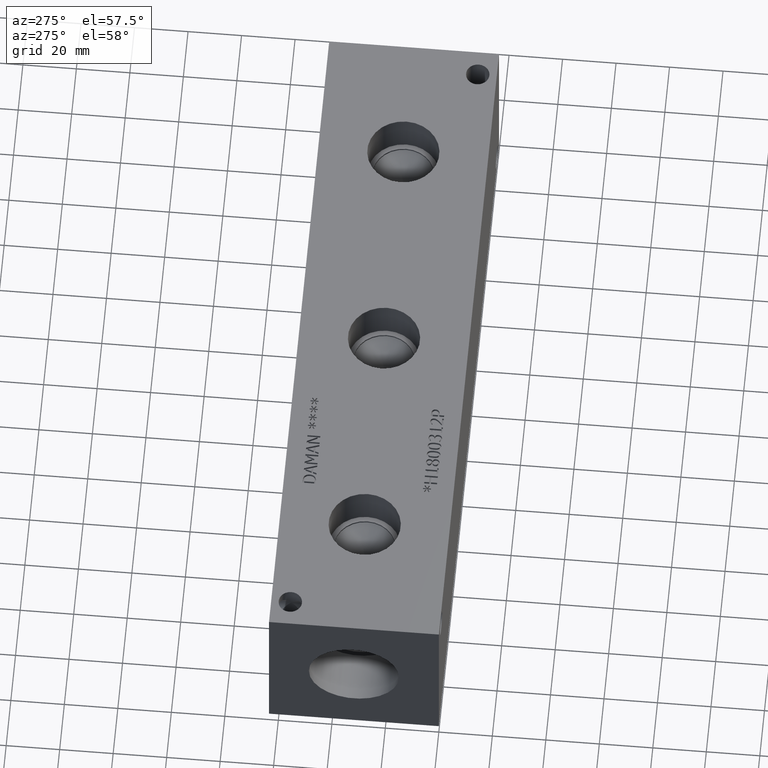
[diagram: clean part render]
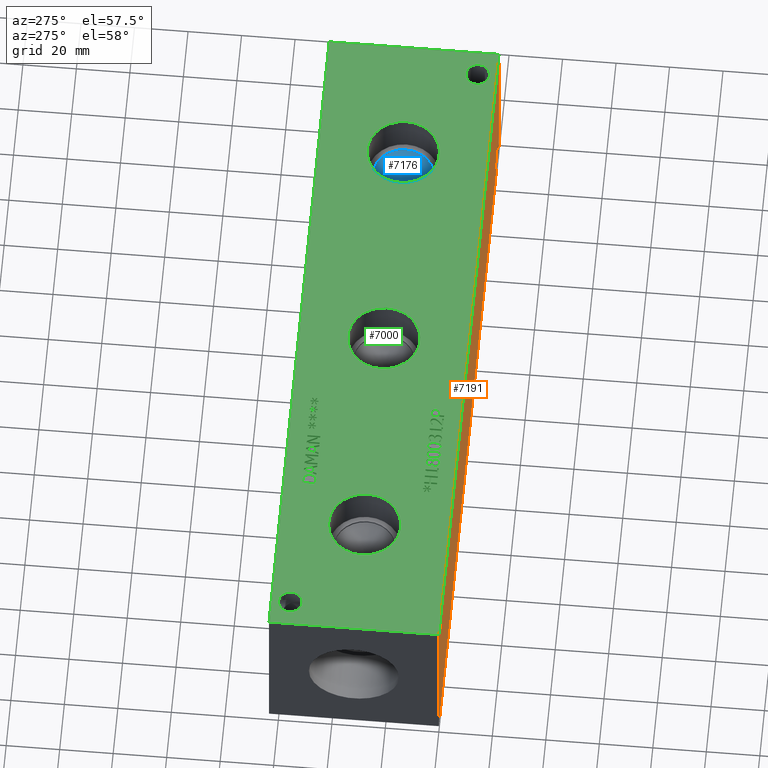
[diagram: same view with three faces highlighted in distinct colors, each labeled with its STEP entity id]
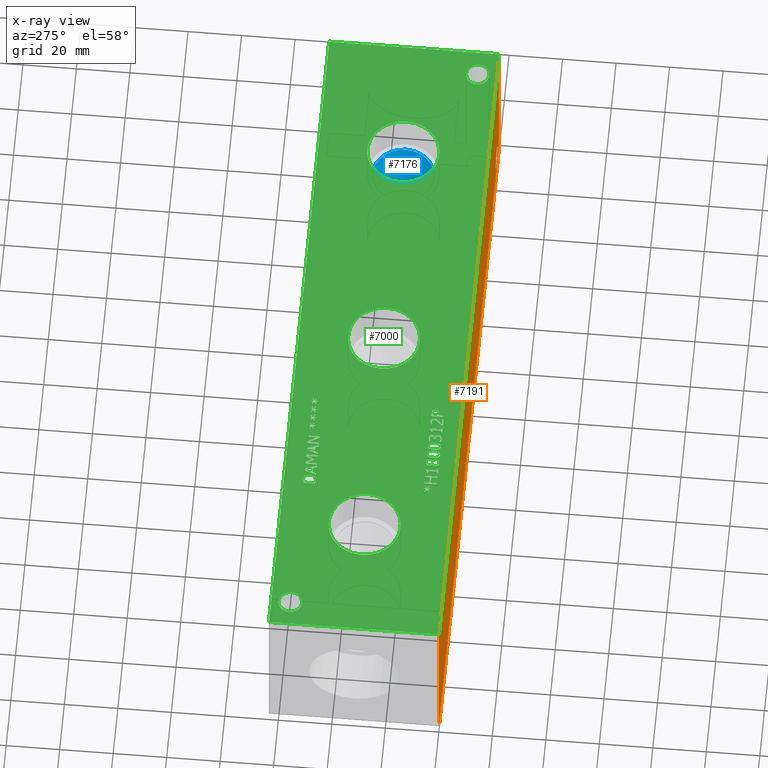
[diagram: x-ray of the same camera — body ghosted, the three highlighted faces saturated]
A machine part, auxiliary view with three faces highlighted in distinct colors.
The next image is the same camera in x-ray (body ghosted, the three faces saturated) — at least one of them is partly hidden behind the body in this view.
Their STEP definitions:

[orange] entity #7191 — the highlighted planar face has unit normal (0, -1, 0).
#85=CIRCLE('',#7476,4.3688);
#86=CIRCLE('',#7477,4.3688);
#88=CIRCLE('',#7486,4.3688);
#89=CIRCLE('',#7487,4.3688);
#166=FACE_BOUND('',#1175,.T.);
#167=FACE_BOUND('',#1176,.T.);
#408=PLANE('',#7551);
#769=FACE_OUTER_BOUND('',#1174,.T.);
#1174=EDGE_LOOP('',(#6411,#6412,#6413,#6414));
#1175=EDGE_LOOP('',(#6415,#6416));
#1176=EDGE_LOOP('',(#6417,#6418));
#1489=LINE('',#11009,#2215);
#1903=LINE('',#12153,#2629);
#1908=LINE('',#12162,#2634);
#1909=LINE('',#12164,#2635);
#2215=VECTOR('',#8031,10.);
#2629=VECTOR('',#8957,10.);
#2634=VECTOR('',#8966,10.);
#2635=VECTOR('',#8969,10.);
#3132=VERTEX_POINT('',#11007);
#3133=VERTEX_POINT('',#11008);
#3432=VERTEX_POINT('',#12008);
#3433=VERTEX_POINT('',#12009);
#3437=VERTEX_POINT('',#12026);
#3438=VERTEX_POINT('',#12027);
#3479=VERTEX_POINT('',#12151);
#3481=VERTEX_POINT('',#12160);
#3953=EDGE_CURVE('',#3132,#3133,#1489,.T.);
#4390=EDGE_CURVE('',#3432,#3433,#85,.T.);
#4391=EDGE_CURVE('',#3433,#3432,#86,.T.);
#4400=EDGE_CURVE('',#3437,#3438,#88,.T.);
#4401=EDGE_CURVE('',#3438,#3437,#89,.T.);
#4459=EDGE_CURVE('',#3479,#3132,#1903,.T.);
#4464=EDGE_CURVE('',#3481,#3133,#1908,.T.);
#4465=EDGE_CURVE('',#3479,#3481,#1909,.T.);
#6411=ORIENTED_EDGE('',*,*,#4465,.T.);
#6412=ORIENTED_EDGE('',*,*,#4464,.T.);
#6413=ORIENTED_EDGE('',*,*,#3953,.F.);
#6414=ORIENTED_EDGE('',*,*,#4459,.F.);
#6415=ORIENTED_EDGE('',*,*,#4390,.T.);
#6416=ORIENTED_EDGE('',*,*,#4391,.T.);
#6417=ORIENTED_EDGE('',*,*,#4400,.T.);
#6418=ORIENTED_EDGE('',*,*,#4401,.T.);
#7191=ADVANCED_FACE('',(#769,#166,#167),#408,.T.);
#7476=AXIS2_PLACEMENT_3D('',#12010,#8787,#8788);
#7477=AXIS2_PLACEMENT_3D('',#12011,#8789,#8790);
#7486=AXIS2_PLACEMENT_3D('',#12028,#8810,#8811);
#7487=AXIS2_PLACEMENT_3D('',#12029,#8812,#8813);
#7551=AXIS2_PLACEMENT_3D('',#12163,#8967,#8968);
#8031=DIRECTION('',(1.,0.,0.));
#8787=DIRECTION('center_axis',(0.,1.,0.));
#8788=DIRECTION('ref_axis',(1.,0.,0.));
#8789=DIRECTION('center_axis',(0.,1.,0.));
#8790=DIRECTION('ref_axis',(1.,0.,0.));
#8810=DIRECTION('center_axis',(0.,1.,0.));
#8811=DIRECTION('ref_axis',(1.,0.,0.));
#8812=DIRECTION('center_axis',(0.,1.,0.));
#8813=DIRECTION('ref_axis',(1.,0.,0.));
#8957=DIRECTION('',(0.,0.,1.));
#8966=DIRECTION('',(0.,0.,1.));
#8967=DIRECTION('center_axis',(0.,-1.,0.));
#8968=DIRECTION('ref_axis',(1.,0.,0.));
#8969=DIRECTION('',(1.,0.,0.));
#11007=CARTESIAN_POINT('',(0.,0.,63.5));
#11008=CARTESIAN_POINT('',(257.175,0.,63.5));
#11009=CARTESIAN_POINT('',(0.,0.,63.5));
#12008=CARTESIAN_POINT('',(252.0188,0.,7.1374));
#12009=CARTESIAN_POINT('',(243.2812,0.,7.1374));
#12010=CARTESIAN_POINT('Origin',(247.65,0.,7.1374));
#12011=CARTESIAN_POINT('Origin',(247.65,0.,7.1374));
#12026=CARTESIAN_POINT('',(13.8938,0.,56.3626));
#12027=CARTESIAN_POINT('',(5.1562,0.,56.3626));
#12028=CARTESIAN_POINT('Origin',(9.525,0.,56.3626));
#12029=CARTESIAN_POINT('Origin',(9.525,0.,56.3626));
#12151=CARTESIAN_POINT('',(0.,0.,0.));
#12153=CARTESIAN_POINT('',(0.,0.,0.));
#12160=CARTESIAN_POINT('',(257.175,0.,0.));
#12162=CARTESIAN_POINT('',(257.175,0.,0.));
#12163=CARTESIAN_POINT('Origin',(0.,0.,0.));
#12164=CARTESIAN_POINT('',(0.,0.,0.));

[blue] entity #7176 — the highlighted conical surface has half-angle 60 deg.
#51=CONICAL_SURFACE('',#7517,5.7531,1.0471975511966);
#103=CIRCLE('',#7518,11.5062);
#104=CIRCLE('',#7519,11.5062);
#754=FACE_OUTER_BOUND('',#1152,.T.);
#1152=EDGE_LOOP('',(#6339,#6340,#6341,#6342));
#1893=LINE('',#12092,#2619);
#2619=VECTOR('',#8887,5.7531);
#3456=VERTEX_POINT('',#12088);
#3457=VERTEX_POINT('',#12089);
#3458=VERTEX_POINT('',#12091);
#4430=EDGE_CURVE('',#3456,#3457,#103,.T.);
#4431=EDGE_CURVE('',#3457,#3458,#1893,.T.);
#4432=EDGE_CURVE('',#3457,#3456,#104,.T.);
#6339=ORIENTED_EDGE('',*,*,#4430,.T.);
#6340=ORIENTED_EDGE('',*,*,#4431,.T.);
#6341=ORIENTED_EDGE('',*,*,#4431,.F.);
#6342=ORIENTED_EDGE('',*,*,#4432,.T.);
#7176=ADVANCED_FACE('',(#754),#51,.F.);
#7517=AXIS2_PLACEMENT_3D('',#12087,#8883,#8884);
#7518=AXIS2_PLACEMENT_3D('',#12090,#8885,#8886);
#7519=AXIS2_PLACEMENT_3D('',#12093,#8888,#8889);
#8883=DIRECTION('center_axis',(0.,0.,1.));
#8884=DIRECTION('ref_axis',(1.,0.,0.));
#8885=DIRECTION('center_axis',(0.,0.,1.));
#8886=DIRECTION('ref_axis',(1.,0.,0.));
#8887=DIRECTION('',(0.866025403784439,1.06057523872491E-16,-0.5));
#8888=DIRECTION('center_axis',(0.,0.,1.));
#8889=DIRECTION('ref_axis',(1.,0.,0.));
#12087=CARTESIAN_POINT('Origin',(211.1248,31.75,43.6645361663252));
#12088=CARTESIAN_POINT('',(222.631,31.75,46.98609));
#12089=CARTESIAN_POINT('',(199.6186,31.75,46.98609));
#12090=CARTESIAN_POINT('Origin',(211.1248,31.75,46.98609));
#12091=CARTESIAN_POINT('',(211.1248,31.75,40.3429823326503));
#12092=CARTESIAN_POINT('',(205.3717,31.75,43.6645361663252));
#12093=CARTESIAN_POINT('Origin',(211.1248,31.75,46.98609));

[green] entity #7000 — the highlighted planar face has unit normal (0, 0, 1).
#54=CIRCLE('',#7293,4.3688);
#55=CIRCLE('',#7294,4.3688);
#56=CIRCLE('',#7295,4.3688);
#57=CIRCLE('',#7296,4.3688);
#58=CIRCLE('',#7297,13.462);
#59=CIRCLE('',#7298,13.462);
#60=CIRCLE('',#7299,13.462);
#61=CIRCLE('',#7300,13.462);
#62=CIRCLE('',#7301,13.462);
#63=CIRCLE('',#7302,13.462);
#127=FACE_BOUND('',#945,.T.);
#128=FACE_BOUND('',#946,.T.);
#129=FACE_BOUND('',#947,.T.);
#130=FACE_BOUND('',#948,.T.);
#131=FACE_BOUND('',#949,.T.);
#132=FACE_BOUND('',#950,.T.);
#133=FACE_BOUND('',#951,.T.);
#134=FACE_BOUND('',#952,.T.);
#135=FACE_BOUND('',#953,.T.);
#136=FACE_BOUND('',#954,.T.);
#137=FACE_BOUND('',#955,.T.);
#138=FACE_BOUND('',#956,.T.);
#139=FACE_BOUND('',#957,.T.);
#140=FACE_BOUND('',#958,.T.);
#141=FACE_BOUND('',#959,.T.);
#142=FACE_BOUND('',#960,.T.);
#143=FACE_BOUND('',#961,.T.);
#144=FACE_BOUND('',#962,.T.);
#145=FACE_BOUND('',#963,.T.);
#146=FACE_BOUND('',#964,.T.);
#147=FACE_BOUND('',#965,.T.);
#148=FACE_BOUND('',#966,.T.);
#149=FACE_BOUND('',#967,.T.);
#150=FACE_BOUND('',#968,.T.);
#257=PLANE('',#7292);
#578=FACE_OUTER_BOUND('',#944,.T.);
#944=EDGE_LOOP('',(#5251,#5252,#5253,#5254));
#945=EDGE_LOOP('',(#5255,#5256,#5257,#5258,#5259,#5260,#5261,#5262,#5263,
#5264,#5265,#5266,#5267,#5268,#5269,#5270,#5271,#5272));
#946=EDGE_LOOP('',(#5273,#5274,#5275,#5276,#5277,#5278,#5279,#5280,#5281,
#5282,#5283,#5284,#5285,#5286,#5287,#5288,#5289,#5290));
#947=EDGE_LOOP('',(#5291,#5292,#5293,#5294,#5295,#5296,#5297,#5298,#5299,
#5300,#5301,#5302,#5303));
#948=EDGE_LOOP('',(#5304,#5305,#5306,#5307,#5308,#5309,#5310,#5311));
#949=EDGE_LOOP('',(#5312,#5313,#5314,#5315,#5316,#5317,#5318));
#950=EDGE_LOOP('',(#5319,#5320,#5321,#5322,#5323,#5324,#5325,#5326));
#951=EDGE_LOOP('',(#5327,#5328,#5329,#5330,#5331,#5332,#5333,#5334,#5335,
#5336));
#952=EDGE_LOOP('',(#5337,#5338,#5339,#5340,#5341,#5342,#5343,#5344,#5345,
#5346,#5347,#5348,#5349,#5350,#5351,#5352,#5353,#5354));
#953=EDGE_LOOP('',(#5355,#5356,#5357,#5358,#5359,#5360,#5361,#5362,#5363,
#5364,#5365,#5366,#5367,#5368,#5369,#5370,#5371,#5372));
#954=EDGE_LOOP('',(#5373,#5374));
#955=EDGE_LOOP('',(#5375,#5376));
#956=EDGE_LOOP('',(#5377,#5378));
#957=EDGE_LOOP('',(#5379,#5380));
#958=EDGE_LOOP('',(#5381,#5382));
#959=EDGE_LOOP('',(#5383,#5384,#5385,#5386,#5387,#5388,#5389,#5390,#5391,
#5392,#5393,#5394,#5395,#5396,#5397,#5398,#5399));
#960=EDGE_LOOP('',(#5400,#5401,#5402,#5403,#5404,#5405,#5406,#5407,#5408,
#5409,#5410,#5411,#5412,#5413,#5414,#5415,#5416,#5417,#5418,#5419,#5420,
#5421,#5422,#5423,#5424,#5425,#5426));
#961=EDGE_LOOP('',(#5427,#5428,#5429,#5430));
#962=EDGE_LOOP('',(#5431,#5432,#5433,#5434));
#963=EDGE_LOOP('',(#5435,#5436,#5437,#5438,#5439,#5440,#5441,#5442,#5443,
#5444,#5445));
#964=EDGE_LOOP('',(#5446,#5447,#5448,#5449,#5450,#5451,#5452,#5453,#5454,
#5455,#5456,#5457,#5458,#5459,#5460,#5461,#5462,#5463));
#965=EDGE_LOOP('',(#5464,#5465,#5466,#5467,#5468,#5469,#5470,#5471,#5472,
#5473,#5474,#5475));
#966=EDGE_LOOP('',(#5476,#5477,#5478,#5479,#5480,#5481,#5482,#5483,#5484,
#5485,#5486));
#967=EDGE_LOOP('',(#5487,#5488,#5489,#5490,#5491,#5492,#5493,#5494,#5495,
#5496,#5497));
#968=EDGE_LOOP('',(#5498,#5499,#5500,#5501,#5502,#5503,#5504,#5505,#5506));
#1200=LINE('',#9112,#1926);
#1203=LINE('',#9118,#1929);
#1206=LINE('',#9124,#1932);
#1209=LINE('',#9130,#1935);
#1212=LINE('',#9136,#1938);
#1216=LINE('',#9179,#1942);
#1220=LINE('',#9187,#1946);
#1223=LINE('',#9193,#1949);
#1226=LINE('',#9199,#1952);
#1230=LINE('',#9224,#1956);
#1233=LINE('',#9230,#1959);
#1236=LINE('',#9236,#1962);
#1239=LINE('',#9242,#1965);
#1242=LINE('',#9248,#1968);
#1245=LINE('',#9253,#1971);
#1260=LINE('',#9489,#1986);
#1267=LINE('',#9571,#1993);
#1272=LINE('',#9633,#1998);
#1276=LINE('',#9641,#2002);
#1279=LINE('',#9647,#2005);
#1282=LINE('',#9653,#2008);
#1285=LINE('',#9659,#2011);
#1288=LINE('',#9665,#2014);
#1291=LINE('',#9671,#2017);
#1294=LINE('',#9677,#2020);
#1297=LINE('',#9683,#2023);
#1300=LINE('',#9689,#2026);
#1303=LINE('',#9695,#2029);
#1306=LINE('',#9700,#2032);
#1308=LINE('',#9706,#2034);
#1312=LINE('',#9714,#2038);
#1315=LINE('',#9720,#2041);
#1318=LINE('',#9726,#2044);
#1321=LINE('',#9732,#2047);
#1324=LINE('',#9738,#2050);
#1327=LINE('',#9744,#2053);
#1330=LINE('',#9750,#2056);
#1333=LINE('',#9756,#2059);
#1336=LINE('',#9762,#2062);
#1339=LINE('',#9768,#2065);
#1342=LINE('',#9774,#2068);
#1345=LINE('',#9780,#2071);
#1348=LINE('',#9786,#2074);
#1351=LINE('',#9792,#2077);
#1354=LINE('',#9798,#2080);
#1357=LINE('',#9804,#2083);
#1360=LINE('',#9809,#2086);
#1362=LINE('',#9815,#2088);
#1366=LINE('',#9823,#2092);
#1369=LINE('',#9829,#2095);
#1372=LINE('',#9835,#2098);
#1376=LINE('',#9860,#2102);
#1379=LINE('',#9866,#2105);
#1382=LINE('',#9872,#2108);
#1385=LINE('',#9878,#2111);
#1388=LINE('',#9884,#2114);
#1391=LINE('',#9889,#2117);
#1421=LINE('',#10412,#2147);
#1424=LINE('',#10418,#2150);
#1427=LINE('',#10424,#2153);
#1435=LINE('',#10525,#2161);
#1438=LINE('',#10531,#2164);
#1446=LINE('',#10632,#2172);
#1453=LINE('',#10714,#2179);
#1456=LINE('',#10720,#2182);
#1460=LINE('',#10763,#2186);
#1464=LINE('',#10771,#2190);
#1472=LINE('',#10872,#2198);
#1475=LINE('',#10878,#2201);
#1484=LINE('',#10998,#2210);
#1487=LINE('',#11003,#2213);
#1489=LINE('',#11009,#2215);
#1490=LINE('',#11011,#2216);
#1491=LINE('',#11013,#2217);
#1492=LINE('',#11014,#2218);
#1493=LINE('',#11017,#2219);
#1494=LINE('',#11019,#2220);
#1495=LINE('',#11021,#2221);
#1496=LINE('',#11023,#2222);
#1497=LINE('',#11025,#2223);
#1498=LINE('',#11027,#2224);
#1499=LINE('',#11029,#2225);
#1500=LINE('',#11031,#2226);
#1501=LINE('',#11033,#2227);
#1502=LINE('',#11035,#2228);
#1503=LINE('',#11037,#2229);
#1504=LINE('',#11039,#2230);
#1505=LINE('',#11041,#2231);
#1506=LINE('',#11043,#2232);
#1507=LINE('',#11045,#2233);
#1508=LINE('',#11047,#2234);
#1509=LINE('',#11049,#2235);
#1510=LINE('',#11050,#2236);
#1511=LINE('',#11053,#2237);
#1512=LINE('',#11055,#2238);
#1513=LINE('',#11057,#2239);
#1514=LINE('',#11059,#2240);
#1515=LINE('',#11061,#2241);
#1516=LINE('',#11063,#2242);
#1517=LINE('',#11065,#2243);
#1518=LINE('',#11067,#2244);
#1519=LINE('',#11069,#2245);
#1520=LINE('',#11071,#2246);
#1521=LINE('',#11073,#2247);
#1522=LINE('',#11075,#2248);
#1523=LINE('',#11077,#2249);
#1524=LINE('',#11079,#2250);
#1525=LINE('',#11081,#2251);
#1526=LINE('',#11083,#2252);
#1527=LINE('',#11085,#2253);
#1528=LINE('',#11086,#2254);
#1529=LINE('',#11089,#2255);
#1530=LINE('',#11091,#2256);
#1531=LINE('',#11093,#2257);
#1532=LINE('',#11095,#2258);
#1533=LINE('',#11097,#2259);
#1534=LINE('',#11099,#2260);
#1535=LINE('',#11101,#2261);
#1536=LINE('',#11103,#2262);
#1537=LINE('',#11105,#2263);
#1538=LINE('',#11107,#2264);
#1539=LINE('',#11109,#2265);
#1540=LINE('',#11111,#2266);
#1541=LINE('',#11112,#2267);
#1542=LINE('',#11115,#2268);
#1543=LINE('',#11117,#2269);
#1544=LINE('',#11119,#2270);
#1545=LINE('',#11121,#2271);
#1546=LINE('',#11123,#2272);
#1547=LINE('',#11125,#2273);
#1548=LINE('',#11127,#2274);
#1549=LINE('',#11128,#2275);
#1550=LINE('',#11146,#2276);
#1551=LINE('',#11148,#2277);
#1552=LINE('',#11150,#2278);
#1553=LINE('',#11157,#2279);
#1554=LINE('',#11159,#2280);
#1555=LINE('',#11161,#2281);
#1556=LINE('',#11163,#2282);
#1557=LINE('',#11165,#2283);
#1558=LINE('',#11167,#2284);
#1559=LINE('',#11169,#2285);
#1560=LINE('',#11170,#2286);
#1561=LINE('',#11173,#2287);
#1562=LINE('',#11175,#2288);
#1563=LINE('',#11177,#2289);
#1564=LINE('',#11179,#2290);
#1565=LINE('',#11181,#2291);
#1566=LINE('',#11183,#2292);
#1567=LINE('',#11185,#2293);
#1568=LINE('',#11187,#2294);
#1569=LINE('',#11189,#2295);
#1570=LINE('',#11190,#2296);
#1571=LINE('',#11193,#2297);
#1572=LINE('',#11195,#2298);
#1573=LINE('',#11197,#2299);
#1574=LINE('',#11199,#2300);
#1575=LINE('',#11201,#2301);
#1576=LINE('',#11203,#2302);
#1577=LINE('',#11205,#2303);
#1578=LINE('',#11207,#2304);
#1579=LINE('',#11209,#2305);
#1580=LINE('',#11211,#2306);
#1581=LINE('',#11213,#2307);
#1582=LINE('',#11215,#2308);
#1583=LINE('',#11217,#2309);
#1584=LINE('',#11219,#2310);
#1585=LINE('',#11221,#2311);
#1586=LINE('',#11223,#2312);
#1587=LINE('',#11225,#2313);
#1588=LINE('',#11226,#2314);
#1589=LINE('',#11229,#2315);
#1590=LINE('',#11231,#2316);
#1591=LINE('',#11233,#2317);
#1592=LINE('',#11235,#2318);
#1593=LINE('',#11237,#2319);
#1594=LINE('',#11239,#2320);
#1595=LINE('',#11241,#2321);
#1596=LINE('',#11243,#2322);
#1597=LINE('',#11245,#2323);
#1598=LINE('',#11247,#2324);
#1599=LINE('',#11249,#2325);
#1600=LINE('',#11251,#2326);
#1601=LINE('',#11253,#2327);
#1602=LINE('',#11255,#2328);
#1603=LINE('',#11257,#2329);
#1604=LINE('',#11259,#2330);
#1605=LINE('',#11261,#2331);
#1606=LINE('',#11262,#2332);
#1926=VECTOR('',#7580,10.);
#1929=VECTOR('',#7585,10.);
#1932=VECTOR('',#7590,10.);
#1935=VECTOR('',#7595,10.);
#1938=VECTOR('',#7600,10.);
#1942=VECTOR('',#7608,10.);
#1946=VECTOR('',#7614,10.);
#1949=VECTOR('',#7619,10.);
#1952=VECTOR('',#7624,10.);
#1956=VECTOR('',#7630,10.);
#1959=VECTOR('',#7635,10.);
#1962=VECTOR('',#7640,10.);
#1965=VECTOR('',#7645,10.);
#1968=VECTOR('',#7650,10.);
#1971=VECTOR('',#7655,10.);
#1986=VECTOR('',#7674,10.);
#1993=VECTOR('',#7683,10.);
#1998=VECTOR('',#7692,10.);
#2002=VECTOR('',#7698,10.);
#2005=VECTOR('',#7703,10.);
#2008=VECTOR('',#7708,10.);
#2011=VECTOR('',#7713,10.);
#2014=VECTOR('',#7718,10.);
#2017=VECTOR('',#7723,10.);
#2020=VECTOR('',#7728,10.);
#2023=VECTOR('',#7733,10.);
#2026=VECTOR('',#7738,10.);
#2029=VECTOR('',#7743,10.);
#2032=VECTOR('',#7748,10.);
#2034=VECTOR('',#7754,10.);
#2038=VECTOR('',#7760,10.);
#2041=VECTOR('',#7765,10.);
#2044=VECTOR('',#7770,10.);
#2047=VECTOR('',#7775,10.);
#2050=VECTOR('',#7780,10.);
#2053=VECTOR('',#7785,10.);
#2056=VECTOR('',#7790,10.);
#2059=VECTOR('',#7795,10.);
#2062=VECTOR('',#7800,10.);
#2065=VECTOR('',#7805,10.);
#2068=VECTOR('',#7810,10.);
#2071=VECTOR('',#7815,10.);
#2074=VECTOR('',#7820,10.);
#2077=VECTOR('',#7825,10.);
#2080=VECTOR('',#7830,10.);
#2083=VECTOR('',#7835,10.);
#2086=VECTOR('',#7840,10.);
#2088=VECTOR('',#7846,10.);
#2092=VECTOR('',#7852,10.);
#2095=VECTOR('',#7857,10.);
#2098=VECTOR('',#7862,10.);
#2102=VECTOR('',#7868,10.);
#2105=VECTOR('',#7873,10.);
#2108=VECTOR('',#7878,10.);
#2111=VECTOR('',#7883,10.);
#2114=VECTOR('',#7888,10.);
#2117=VECTOR('',#7893,10.);
#2147=VECTOR('',#7931,10.);
#2150=VECTOR('',#7936,10.);
#2153=VECTOR('',#7941,10.);
#2161=VECTOR('',#7951,10.);
#2164=VECTOR('',#7956,10.);
#2172=VECTOR('',#7966,10.);
#2179=VECTOR('',#7975,10.);
#2182=VECTOR('',#7980,10.);
#2186=VECTOR('',#7988,10.);
#2190=VECTOR('',#7994,10.);
#2198=VECTOR('',#8004,10.);
#2201=VECTOR('',#8009,10.);
#2210=VECTOR('',#8020,10.);
#2213=VECTOR('',#8025,10.);
#2215=VECTOR('',#8031,10.);
#2216=VECTOR('',#8032,10.);
#2217=VECTOR('',#8033,10.);
#2218=VECTOR('',#8034,10.);
#2219=VECTOR('',#8035,10.);
#2220=VECTOR('',#8036,10.);
#2221=VECTOR('',#8037,10.);
#2222=VECTOR('',#8038,10.);
#2223=VECTOR('',#8039,10.);
#2224=VECTOR('',#8040,10.);
#2225=VECTOR('',#8041,10.);
#2226=VECTOR('',#8042,10.);
#2227=VECTOR('',#8043,10.);
#2228=VECTOR('',#8044,10.);
#2229=VECTOR('',#8045,10.);
#2230=VECTOR('',#8046,10.);
#2231=VECTOR('',#8047,10.);
#2232=VECTOR('',#8048,10.);
#2233=VECTOR('',#8049,10.);
#2234=VECTOR('',#8050,10.);
#2235=VECTOR('',#8051,10.);
#2236=VECTOR('',#8052,10.);
#2237=VECTOR('',#8053,10.);
#2238=VECTOR('',#8054,10.);
#2239=VECTOR('',#8055,10.);
#2240=VECTOR('',#8056,10.);
#2241=VECTOR('',#8057,10.);
#2242=VECTOR('',#8058,10.);
#2243=VECTOR('',#8059,10.);
#2244=VECTOR('',#8060,10.);
#2245=VECTOR('',#8061,10.);
#2246=VECTOR('',#8062,10.);
#2247=VECTOR('',#8063,10.);
#2248=VECTOR('',#8064,10.);
#2249=VECTOR('',#8065,10.);
#2250=VECTOR('',#8066,10.);
#2251=VECTOR('',#8067,10.);
#2252=VECTOR('',#8068,10.);
#2253=VECTOR('',#8069,10.);
#2254=VECTOR('',#8070,10.);
#2255=VECTOR('',#8071,10.);
#2256=VECTOR('',#8072,10.);
#2257=VECTOR('',#8073,10.);
#2258=VECTOR('',#8074,10.);
#2259=VECTOR('',#8075,10.);
#2260=VECTOR('',#8076,10.);
#2261=VECTOR('',#8077,10.);
#2262=VECTOR('',#8078,10.);
#2263=VECTOR('',#8079,10.);
#2264=VECTOR('',#8080,10.);
#2265=VECTOR('',#8081,10.);
#2266=VECTOR('',#8082,10.);
#2267=VECTOR('',#8083,10.);
#2268=VECTOR('',#8084,10.);
#2269=VECTOR('',#8085,10.);
#2270=VECTOR('',#8086,10.);
#2271=VECTOR('',#8087,10.);
#2272=VECTOR('',#8088,10.);
#2273=VECTOR('',#8089,10.);
#2274=VECTOR('',#8090,10.);
#2275=VECTOR('',#8091,10.);
#2276=VECTOR('',#8092,10.);
#2277=VECTOR('',#8093,10.);
#2278=VECTOR('',#8094,10.);
#2279=VECTOR('',#8095,10.);
#2280=VECTOR('',#8096,10.);
#2281=VECTOR('',#8097,10.);
#2282=VECTOR('',#8098,10.);
#2283=VECTOR('',#8099,10.);
#2284=VECTOR('',#8100,10.);
#2285=VECTOR('',#8101,10.);
#2286=VECTOR('',#8102,10.);
#2287=VECTOR('',#8103,10.);
#2288=VECTOR('',#8104,10.);
#2289=VECTOR('',#8105,10.);
#2290=VECTOR('',#8106,10.);
#2291=VECTOR('',#8107,10.);
#2292=VECTOR('',#8108,10.);
#2293=VECTOR('',#8109,10.);
#2294=VECTOR('',#8110,10.);
#2295=VECTOR('',#8111,10.);
#2296=VECTOR('',#8112,10.);
#2297=VECTOR('',#8113,10.);
#2298=VECTOR('',#8114,10.);
#2299=VECTOR('',#8115,10.);
#2300=VECTOR('',#8116,10.);
#2301=VECTOR('',#8117,10.);
#2302=VECTOR('',#8118,10.);
#2303=VECTOR('',#8119,10.);
#2304=VECTOR('',#8120,10.);
#2305=VECTOR('',#8121,10.);
#2306=VECTOR('',#8122,10.);
#2307=VECTOR('',#8123,10.);
#2308=VECTOR('',#8124,10.);
#2309=VECTOR('',#8125,10.);
#2310=VECTOR('',#8126,10.);
#2311=VECTOR('',#8127,10.);
#2312=VECTOR('',#8128,10.);
#2313=VECTOR('',#8129,10.);
#2314=VECTOR('',#8130,10.);
#2315=VECTOR('',#8131,10.);
#2316=VECTOR('',#8132,10.);
#2317=VECTOR('',#8133,10.);
#2318=VECTOR('',#8134,10.);
#2319=VECTOR('',#8135,10.);
#2320=VECTOR('',#8136,10.);
#2321=VECTOR('',#8137,10.);
#2322=VECTOR('',#8138,10.);
#2323=VECTOR('',#8139,10.);
#2324=VECTOR('',#8140,10.);
#2325=VECTOR('',#8141,10.);
#2326=VECTOR('',#8142,10.);
#2327=VECTOR('',#8143,10.);
#2328=VECTOR('',#8144,10.);
#2329=VECTOR('',#8145,10.);
#2330=VECTOR('',#8146,10.);
#2331=VECTOR('',#8147,10.);
#2332=VECTOR('',#8148,10.);
#2644=B_SPLINE_CURVE_WITH_KNOTS('',2,(#9079,#9080,#9081,#9082),
 .UNSPECIFIED.,.F.,.F.,(3,1,3),(0.,1.,2.),.UNSPECIFIED.);
#2646=B_SPLINE_CURVE_WITH_KNOTS('',2,(#9100,#9101,#9102,#9103),
 .UNSPECIFIED.,.F.,.F.,(3,1,3),(0.,1.,2.),.UNSPECIFIED.);
#2648=B_SPLINE_CURVE_WITH_KNOTS('',2,(#9149,#9150,#9151,#9152),
 .UNSPECIFIED.,.F.,.F.,(3,1,3),(0.,1.,2.),.UNSPECIFIED.);
#2650=B_SPLINE_CURVE_WITH_KNOTS('',2,(#9167,#9168,#9169,#9170),
 .UNSPECIFIED.,.F.,.F.,(3,1,3),(0.,1.,2.),.UNSPECIFIED.);
#2652=B_SPLINE_CURVE_WITH_KNOTS('',2,(#9212,#9213,#9214,#9215),
 .UNSPECIFIED.,.F.,.F.,(3,1,3),(0.,1.,2.),.UNSPECIFIED.);
#2674=B_SPLINE_CURVE_WITH_KNOTS('',2,(#9456,#9457,#9458,#9459),
 .UNSPECIFIED.,.F.,.F.,(3,1,3),(0.,1.,2.),.UNSPECIFIED.);
#2676=B_SPLINE_CURVE_WITH_KNOTS('',2,(#9477,#9478,#9479,#9480),
 .UNSPECIFIED.,.F.,.F.,(3,1,3),(0.,1.,2.),.UNSPECIFIED.);
#2678=B_SPLINE_CURVE_WITH_KNOTS('',2,(#9502,#9503,#9504,#9505),
 .UNSPECIFIED.,.F.,.F.,(3,1,3),(0.,1.,2.),.UNSPECIFIED.);
#2680=B_SPLINE_CURVE_WITH_KNOTS('',2,(#9521,#9522,#9523,#9524),
 .UNSPECIFIED.,.F.,.F.,(3,1,3),(0.,1.,2.),.UNSPECIFIED.);
#2682=B_SPLINE_CURVE_WITH_KNOTS('',2,(#9540,#9541,#9542,#9543),
 .UNSPECIFIED.,.F.,.F.,(3,1,3),(0.,1.,2.),.UNSPECIFIED.);
#2684=B_SPLINE_CURVE_WITH_KNOTS('',2,(#9559,#9560,#9561,#9562),
 .UNSPECIFIED.,.F.,.F.,(3,1,3),(0.,1.,2.),.UNSPECIFIED.);
#2686=B_SPLINE_CURVE_WITH_KNOTS('',2,(#9584,#9585,#9586,#9587),
 .UNSPECIFIED.,.F.,.F.,(3,1,3),(0.,1.,2.),.UNSPECIFIED.);
#2688=B_SPLINE_CURVE_WITH_KNOTS('',2,(#9603,#9604,#9605,#9606),
 .UNSPECIFIED.,.F.,.F.,(3,1,3),(0.,1.,2.),.UNSPECIFIED.);
#2690=B_SPLINE_CURVE_WITH_KNOTS('',2,(#9621,#9622,#9623,#9624),
 .UNSPECIFIED.,.F.,.F.,(3,1,3),(0.,1.,2.),.UNSPECIFIED.);
#2692=B_SPLINE_CURVE_WITH_KNOTS('',2,(#9848,#9849,#9850,#9851),
 .UNSPECIFIED.,.F.,.F.,(3,1,3),(0.,1.,2.),.UNSPECIFIED.);
#2710=B_SPLINE_CURVE_WITH_KNOTS('',2,(#10054,#10055,#10056,#10057),
 .UNSPECIFIED.,.F.,.F.,(3,1,3),(0.,1.,2.),.UNSPECIFIED.);
#2712=B_SPLINE_CURVE_WITH_KNOTS('',2,(#10075,#10076,#10077,#10078),
 .UNSPECIFIED.,.F.,.F.,(3,1,3),(0.,1.,2.),.UNSPECIFIED.);
#2714=B_SPLINE_CURVE_WITH_KNOTS('',2,(#10094,#10095,#10096,#10097),
 .UNSPECIFIED.,.F.,.F.,(3,1,3),(0.,1.,2.),.UNSPECIFIED.);
#2716=B_SPLINE_CURVE_WITH_KNOTS('',2,(#10112,#10113,#10114,#10115),
 .UNSPECIFIED.,.F.,.F.,(3,1,3),(0.,1.,2.),.UNSPECIFIED.);
#2734=B_SPLINE_CURVE_WITH_KNOTS('',2,(#10283,#10284,#10285,#10286),
 .UNSPECIFIED.,.F.,.F.,(3,1,3),(0.,1.,2.),.UNSPECIFIED.);
#2736=B_SPLINE_CURVE_WITH_KNOTS('',2,(#10304,#10305,#10306,#10307),
 .UNSPECIFIED.,.F.,.F.,(3,1,3),(0.,1.,2.),.UNSPECIFIED.);
#2738=B_SPLINE_CURVE_WITH_KNOTS('',2,(#10323,#10324,#10325,#10326),
 .UNSPECIFIED.,.F.,.F.,(3,1,3),(0.,1.,2.),.UNSPECIFIED.);
#2740=B_SPLINE_CURVE_WITH_KNOTS('',2,(#10341,#10342,#10343,#10344),
 .UNSPECIFIED.,.F.,.F.,(3,1,3),(0.,1.,2.),.UNSPECIFIED.);
#2742=B_SPLINE_CURVE_WITH_KNOTS('',2,(#10360,#10361,#10362,#10363),
 .UNSPECIFIED.,.F.,.F.,(3,1,3),(0.,1.,2.),.UNSPECIFIED.);
#2744=B_SPLINE_CURVE_WITH_KNOTS('',2,(#10381,#10382,#10383,#10384),
 .UNSPECIFIED.,.F.,.F.,(3,1,3),(0.,1.,2.),.UNSPECIFIED.);
#2746=B_SPLINE_CURVE_WITH_KNOTS('',2,(#10400,#10401,#10402,#10403),
 .UNSPECIFIED.,.F.,.F.,(3,1,3),(0.,1.,2.),.UNSPECIFIED.);
#2748=B_SPLINE_CURVE_WITH_KNOTS('',2,(#10437,#10438,#10439,#10440),
 .UNSPECIFIED.,.F.,.F.,(3,1,3),(0.,1.,2.),.UNSPECIFIED.);
#2750=B_SPLINE_CURVE_WITH_KNOTS('',2,(#10456,#10457,#10458,#10459),
 .UNSPECIFIED.,.F.,.F.,(3,1,3),(0.,1.,2.),.UNSPECIFIED.);
#2752=B_SPLINE_CURVE_WITH_KNOTS('',2,(#10475,#10476,#10477,#10478),
 .UNSPECIFIED.,.F.,.F.,(3,1,3),(0.,1.,2.),.UNSPECIFIED.);
#2754=B_SPLINE_CURVE_WITH_KNOTS('',2,(#10494,#10495,#10496,#10497),
 .UNSPECIFIED.,.F.,.F.,(3,1,3),(0.,1.,2.),.UNSPECIFIED.);
#2756=B_SPLINE_CURVE_WITH_KNOTS('',2,(#10513,#10514,#10515,#10516),
 .UNSPECIFIED.,.F.,.F.,(3,1,3),(0.,1.,2.),.UNSPECIFIED.);
#2758=B_SPLINE_CURVE_WITH_KNOTS('',2,(#10544,#10545,#10546,#10547),
 .UNSPECIFIED.,.F.,.F.,(3,1,3),(0.,1.,2.),.UNSPECIFIED.);
#2760=B_SPLINE_CURVE_WITH_KNOTS('',2,(#10563,#10564,#10565,#10566),
 .UNSPECIFIED.,.F.,.F.,(3,1,3),(0.,1.,2.),.UNSPECIFIED.);
#2762=B_SPLINE_CURVE_WITH_KNOTS('',2,(#10582,#10583,#10584,#10585),
 .UNSPECIFIED.,.F.,.F.,(3,1,3),(0.,1.,2.),.UNSPECIFIED.);
#2764=B_SPLINE_CURVE_WITH_KNOTS('',2,(#10601,#10602,#10603,#10604),
 .UNSPECIFIED.,.F.,.F.,(3,1,3),(0.,1.,2.),.UNSPECIFIED.);
#2766=B_SPLINE_CURVE_WITH_KNOTS('',2,(#10620,#10621,#10622,#10623),
 .UNSPECIFIED.,.F.,.F.,(3,1,3),(0.,1.,2.),.UNSPECIFIED.);
#2768=B_SPLINE_CURVE_WITH_KNOTS('',2,(#10645,#10646,#10647,#10648),
 .UNSPECIFIED.,.F.,.F.,(3,1,3),(0.,1.,2.),.UNSPECIFIED.);
#2770=B_SPLINE_CURVE_WITH_KNOTS('',2,(#10664,#10665,#10666,#10667),
 .UNSPECIFIED.,.F.,.F.,(3,1,3),(0.,1.,2.),.UNSPECIFIED.);
#2772=B_SPLINE_CURVE_WITH_KNOTS('',2,(#10683,#10684,#10685,#10686),
 .UNSPECIFIED.,.F.,.F.,(3,1,3),(0.,1.,2.),.UNSPECIFIED.);
#2774=B_SPLINE_CURVE_WITH_KNOTS('',2,(#10702,#10703,#10704,#10705),
 .UNSPECIFIED.,.F.,.F.,(3,1,3),(0.,1.,2.),.UNSPECIFIED.);
#2776=B_SPLINE_CURVE_WITH_KNOTS('',2,(#10733,#10734,#10735,#10736),
 .UNSPECIFIED.,.F.,.F.,(3,1,3),(0.,1.,2.),.UNSPECIFIED.);
#2778=B_SPLINE_CURVE_WITH_KNOTS('',2,(#10751,#10752,#10753,#10754),
 .UNSPECIFIED.,.F.,.F.,(3,1,3),(0.,1.,2.),.UNSPECIFIED.);
#2780=B_SPLINE_CURVE_WITH_KNOTS('',2,(#10784,#10785,#10786,#10787),
 .UNSPECIFIED.,.F.,.F.,(3,1,3),(0.,1.,2.),.UNSPECIFIED.);
#2782=B_SPLINE_CURVE_WITH_KNOTS('',2,(#10803,#10804,#10805,#10806),
 .UNSPECIFIED.,.F.,.F.,(3,1,3),(0.,1.,2.),.UNSPECIFIED.);
#2784=B_SPLINE_CURVE_WITH_KNOTS('',2,(#10822,#10823,#10824,#10825),
 .UNSPECIFIED.,.F.,.F.,(3,1,3),(0.,1.,2.),.UNSPECIFIED.);
#2786=B_SPLINE_CURVE_WITH_KNOTS('',2,(#10841,#10842,#10843,#10844),
 .UNSPECIFIED.,.F.,.F.,(3,1,3),(0.,1.,2.),.UNSPECIFIED.);
#2788=B_SPLINE_CURVE_WITH_KNOTS('',2,(#10860,#10861,#10862,#10863),
 .UNSPECIFIED.,.F.,.F.,(3,1,3),(0.,1.,2.),.UNSPECIFIED.);
#2790=B_SPLINE_CURVE_WITH_KNOTS('',2,(#10891,#10892,#10893,#10894),
 .UNSPECIFIED.,.F.,.F.,(3,1,3),(0.,1.,2.),.UNSPECIFIED.);
#2792=B_SPLINE_CURVE_WITH_KNOTS('',2,(#10910,#10911,#10912,#10913),
 .UNSPECIFIED.,.F.,.F.,(3,1,3),(0.,1.,2.),.UNSPECIFIED.);
#2794=B_SPLINE_CURVE_WITH_KNOTS('',2,(#10929,#10930,#10931,#10932),
 .UNSPECIFIED.,.F.,.F.,(3,1,3),(0.,1.,2.),.UNSPECIFIED.);
#2796=B_SPLINE_CURVE_WITH_KNOTS('',2,(#10948,#10949,#10950,#10951),
 .UNSPECIFIED.,.F.,.F.,(3,1,3),(0.,1.,2.),.UNSPECIFIED.);
#2798=B_SPLINE_CURVE_WITH_KNOTS('',2,(#10967,#10968,#10969,#10970),
 .UNSPECIFIED.,.F.,.F.,(3,1,3),(0.,1.,2.),.UNSPECIFIED.);
#2800=B_SPLINE_CURVE_WITH_KNOTS('',2,(#10986,#10987,#10988,#10989),
 .UNSPECIFIED.,.F.,.F.,(3,1,3),(0.,1.,2.),.UNSPECIFIED.);
#2802=B_SPLINE_CURVE_WITH_KNOTS('',2,(#11131,#11132,#11133,#11134),
 .UNSPECIFIED.,.F.,.F.,(3,1,3),(0.,1.,2.),.UNSPECIFIED.);
#2803=B_SPLINE_CURVE_WITH_KNOTS('',2,(#11136,#11137,#11138,#11139),
 .UNSPECIFIED.,.F.,.F.,(3,1,3),(0.,1.,2.),.UNSPECIFIED.);
#2804=B_SPLINE_CURVE_WITH_KNOTS('',2,(#11141,#11142,#11143,#11144),
 .UNSPECIFIED.,.F.,.F.,(3,1,3),(0.,1.,2.),.UNSPECIFIED.);
#2805=B_SPLINE_CURVE_WITH_KNOTS('',2,(#11151,#11152,#11153,#11154),
 .UNSPECIFIED.,.F.,.F.,(3,1,3),(0.,1.,2.),.UNSPECIFIED.);
#2832=VERTEX_POINT('',#9077);
#2833=VERTEX_POINT('',#9078);
#2836=VERTEX_POINT('',#9099);
#2838=VERTEX_POINT('',#9111);
#2840=VERTEX_POINT('',#9117);
#2842=VERTEX_POINT('',#9123);
#2844=VERTEX_POINT('',#9129);
#2846=VERTEX_POINT('',#9135);
#2848=VERTEX_POINT('',#9148);
#2850=VERTEX_POINT('',#9177);
#2851=VERTEX_POINT('',#9178);
#2854=VERTEX_POINT('',#9186);
#2856=VERTEX_POINT('',#9192);
#2858=VERTEX_POINT('',#9198);
#2860=VERTEX_POINT('',#9211);
#2862=VERTEX_POINT('',#9223);
#2864=VERTEX_POINT('',#9229);
#2866=VERTEX_POINT('',#9235);
#2868=VERTEX_POINT('',#9241);
#2870=VERTEX_POINT('',#9247);
#2892=VERTEX_POINT('',#9454);
#2893=VERTEX_POINT('',#9455);
#2896=VERTEX_POINT('',#9476);
#2898=VERTEX_POINT('',#9488);
#2900=VERTEX_POINT('',#9501);
#2902=VERTEX_POINT('',#9520);
#2904=VERTEX_POINT('',#9539);
#2906=VERTEX_POINT('',#9558);
#2908=VERTEX_POINT('',#9570);
#2910=VERTEX_POINT('',#9583);
#2912=VERTEX_POINT('',#9602);
#2914=VERTEX_POINT('',#9631);
#2915=VERTEX_POINT('',#9632);
#2918=VERTEX_POINT('',#9640);
#2920=VERTEX_POINT('',#9646);
#2922=VERTEX_POINT('',#9652);
#2924=VERTEX_POINT('',#9658);
#2926=VERTEX_POINT('',#9664);
#2928=VERTEX_POINT('',#9670);
#2930=VERTEX_POINT('',#9676);
#2932=VERTEX_POINT('',#9682);
#2934=VERTEX_POINT('',#9688);
#2936=VERTEX_POINT('',#9694);
#2938=VERTEX_POINT('',#9704);
#2939=VERTEX_POINT('',#9705);
#2942=VERTEX_POINT('',#9713);
#2944=VERTEX_POINT('',#9719);
#2946=VERTEX_POINT('',#9725);
#2948=VERTEX_POINT('',#9731);
#2950=VERTEX_POINT('',#9737);
#2952=VERTEX_POINT('',#9743);
#2954=VERTEX_POINT('',#9749);
#2956=VERTEX_POINT('',#9755);
#2958=VERTEX_POINT('',#9761);
#2960=VERTEX_POINT('',#9767);
#2962=VERTEX_POINT('',#9773);
#2964=VERTEX_POINT('',#9779);
#2966=VERTEX_POINT('',#9785);
#2968=VERTEX_POINT('',#9791);
#2970=VERTEX_POINT('',#9797);
#2972=VERTEX_POINT('',#9803);
#2974=VERTEX_POINT('',#9813);
#2975=VERTEX_POINT('',#9814);
#2978=VERTEX_POINT('',#9822);
#2980=VERTEX_POINT('',#9828);
#2982=VERTEX_POINT('',#9834);
#2984=VERTEX_POINT('',#9847);
#2986=VERTEX_POINT('',#9859);
#2988=VERTEX_POINT('',#9865);
#2990=VERTEX_POINT('',#9871);
#2992=VERTEX_POINT('',#9877);
#2994=VERTEX_POINT('',#9883);
#3012=VERTEX_POINT('',#10052);
#3013=VERTEX_POINT('',#10053);
#3016=VERTEX_POINT('',#10074);
#3018=VERTEX_POINT('',#10093);
#3036=VERTEX_POINT('',#10281);
#3037=VERTEX_POINT('',#10282);
#3040=VERTEX_POINT('',#10303);
#3042=VERTEX_POINT('',#10322);
#3044=VERTEX_POINT('',#10358);
#3045=VERTEX_POINT('',#10359);
#3048=VERTEX_POINT('',#10380);
#3050=VERTEX_POINT('',#10399);
#3052=VERTEX_POINT('',#10411);
#3054=VERTEX_POINT('',#10417);
#3056=VERTEX_POINT('',#10423);
#3058=VERTEX_POINT('',#10436);
#3060=VERTEX_POINT('',#10455);
#3062=VERTEX_POINT('',#10474);
#3064=VERTEX_POINT('',#10493);
#3066=VERTEX_POINT('',#10512);
#3068=VERTEX_POINT('',#10524);
#3070=VERTEX_POINT('',#10530);
#3072=VERTEX_POINT('',#10543);
#3074=VERTEX_POINT('',#10562);
#3076=VERTEX_POINT('',#10581);
#3078=VERTEX_POINT('',#10600);
#3080=VERTEX_POINT('',#10619);
#3082=VERTEX_POINT('',#10631);
#3084=VERTEX_POINT('',#10644);
#3086=VERTEX_POINT('',#10663);
#3088=VERTEX_POINT('',#10682);
#3090=VERTEX_POINT('',#10701);
#3092=VERTEX_POINT('',#10713);
#3094=VERTEX_POINT('',#10719);
#3096=VERTEX_POINT('',#10732);
#3098=VERTEX_POINT('',#10761);
#3099=VERTEX_POINT('',#10762);
#3102=VERTEX_POINT('',#10770);
#3104=VERTEX_POINT('',#10783);
#3106=VERTEX_POINT('',#10802);
#3108=VERTEX_POINT('',#10821);
#3110=VERTEX_POINT('',#10840);
#3112=VERTEX_POINT('',#10859);
#3114=VERTEX_POINT('',#10871);
#3116=VERTEX_POINT('',#10877);
#3118=VERTEX_POINT('',#10890);
#3120=VERTEX_POINT('',#10909);
#3122=VERTEX_POINT('',#10928);
#3124=VERTEX_POINT('',#10947);
#3126=VERTEX_POINT('',#10966);
#3128=VERTEX_POINT('',#10985);
#3130=VERTEX_POINT('',#10997);
#3132=VERTEX_POINT('',#11007);
#3133=VERTEX_POINT('',#11008);
#3134=VERTEX_POINT('',#11010);
#3135=VERTEX_POINT('',#11012);
#3136=VERTEX_POINT('',#11015);
#3137=VERTEX_POINT('',#11016);
#3138=VERTEX_POINT('',#11018);
#3139=VERTEX_POINT('',#11020);
#3140=VERTEX_POINT('',#11022);
#3141=VERTEX_POINT('',#11024);
#3142=VERTEX_POINT('',#11026);
#3143=VERTEX_POINT('',#11028);
#3144=VERTEX_POINT('',#11030);
#3145=VERTEX_POINT('',#11032);
#3146=VERTEX_POINT('',#11034);
#3147=VERTEX_POINT('',#11036);
#3148=VERTEX_POINT('',#11038);
#3149=VERTEX_POINT('',#11040);
#3150=VERTEX_POINT('',#11042);
#3151=VERTEX_POINT('',#11044);
#3152=VERTEX_POINT('',#11046);
#3153=VERTEX_POINT('',#11048);
#3154=VERTEX_POINT('',#11051);
#3155=VERTEX_POINT('',#11052);
#3156=VERTEX_POINT('',#11054);
#3157=VERTEX_POINT('',#11056);
#3158=VERTEX_POINT('',#11058);
#3159=VERTEX_POINT('',#11060);
#3160=VERTEX_POINT('',#11062);
#3161=VERTEX_POINT('',#11064);
#3162=VERTEX_POINT('',#11066);
#3163=VERTEX_POINT('',#11068);
#3164=VERTEX_POINT('',#11070);
#3165=VERTEX_POINT('',#11072);
#3166=VERTEX_POINT('',#11074);
#3167=VERTEX_POINT('',#11076);
#3168=VERTEX_POINT('',#11078);
#3169=VERTEX_POINT('',#11080);
#3170=VERTEX_POINT('',#11082);
#3171=VERTEX_POINT('',#11084);
#3172=VERTEX_POINT('',#11087);
#3173=VERTEX_POINT('',#11088);
#3174=VERTEX_POINT('',#11090);
#3175=VERTEX_POINT('',#11092);
#3176=VERTEX_POINT('',#11094);
#3177=VERTEX_POINT('',#11096);
#3178=VERTEX_POINT('',#11098);
#3179=VERTEX_POINT('',#11100);
#3180=VERTEX_POINT('',#11102);
#3181=VERTEX_POINT('',#11104);
#3182=VERTEX_POINT('',#11106);
#3183=VERTEX_POINT('',#11108);
#3184=VERTEX_POINT('',#11110);
#3185=VERTEX_POINT('',#11113);
#3186=VERTEX_POINT('',#11114);
#3187=VERTEX_POINT('',#11116);
#3188=VERTEX_POINT('',#11118);
#3189=VERTEX_POINT('',#11120);
#3190=VERTEX_POINT('',#11122);
#3191=VERTEX_POINT('',#11124);
#3192=VERTEX_POINT('',#11126);
#3193=VERTEX_POINT('',#11129);
#3194=VERTEX_POINT('',#11130);
#3195=VERTEX_POINT('',#11135);
#3196=VERTEX_POINT('',#11140);
#3197=VERTEX_POINT('',#11145);
#3198=VERTEX_POINT('',#11147);
#3199=VERTEX_POINT('',#11149);
#3200=VERTEX_POINT('',#11155);
#3201=VERTEX_POINT('',#11156);
#3202=VERTEX_POINT('',#11158);
#3203=VERTEX_POINT('',#11160);
#3204=VERTEX_POINT('',#11162);
#3205=VERTEX_POINT('',#11164);
#3206=VERTEX_POINT('',#11166);
#3207=VERTEX_POINT('',#11168);
#3208=VERTEX_POINT('',#11171);
#3209=VERTEX_POINT('',#11172);
#3210=VERTEX_POINT('',#11174);
#3211=VERTEX_POINT('',#11176);
#3212=VERTEX_POINT('',#11178);
#3213=VERTEX_POINT('',#11180);
#3214=VERTEX_POINT('',#11182);
#3215=VERTEX_POINT('',#11184);
#3216=VERTEX_POINT('',#11186);
#3217=VERTEX_POINT('',#11188);
#3218=VERTEX_POINT('',#11191);
#3219=VERTEX_POINT('',#11192);
#3220=VERTEX_POINT('',#11194);
#3221=VERTEX_POINT('',#11196);
#3222=VERTEX_POINT('',#11198);
#3223=VERTEX_POINT('',#11200);
#3224=VERTEX_POINT('',#11202);
#3225=VERTEX_POINT('',#11204);
#3226=VERTEX_POINT('',#11206);
#3227=VERTEX_POINT('',#11208);
#3228=VERTEX_POINT('',#11210);
#3229=VERTEX_POINT('',#11212);
#3230=VERTEX_POINT('',#11214);
#3231=VERTEX_POINT('',#11216);
#3232=VERTEX_POINT('',#11218);
#3233=VERTEX_POINT('',#11220);
#3234=VERTEX_POINT('',#11222);
#3235=VERTEX_POINT('',#11224);
#3236=VERTEX_POINT('',#11227);
#3237=VERTEX_POINT('',#11228);
#3238=VERTEX_POINT('',#11230);
#3239=VERTEX_POINT('',#11232);
#3240=VERTEX_POINT('',#11234);
#3241=VERTEX_POINT('',#11236);
#3242=VERTEX_POINT('',#11238);
#3243=VERTEX_POINT('',#11240);
#3244=VERTEX_POINT('',#11242);
#3245=VERTEX_POINT('',#11244);
#3246=VERTEX_POINT('',#11246);
#3247=VERTEX_POINT('',#11248);
#3248=VERTEX_POINT('',#11250);
#3249=VERTEX_POINT('',#11252);
#3250=VERTEX_POINT('',#11254);
#3251=VERTEX_POINT('',#11256);
#3252=VERTEX_POINT('',#11258);
#3253=VERTEX_POINT('',#11260);
#3254=VERTEX_POINT('',#11263);
#3255=VERTEX_POINT('',#11264);
#3256=VERTEX_POINT('',#11267);
#3257=VERTEX_POINT('',#11268);
#3258=VERTEX_POINT('',#11271);
#3259=VERTEX_POINT('',#11272);
#3260=VERTEX_POINT('',#11275);
#3261=VERTEX_POINT('',#11276);
#3262=VERTEX_POINT('',#11279);
#3263=VERTEX_POINT('',#11280);
#3503=EDGE_CURVE('',#2832,#2833,#2644,.T.);
#3507=EDGE_CURVE('',#2836,#2832,#2646,.T.);
#3510=EDGE_CURVE('',#2838,#2836,#1200,.T.);
#3513=EDGE_CURVE('',#2840,#2838,#1203,.T.);
#3516=EDGE_CURVE('',#2842,#2840,#1206,.T.);
#3519=EDGE_CURVE('',#2844,#2842,#1209,.T.);
#3522=EDGE_CURVE('',#2846,#2844,#1212,.T.);
#3525=EDGE_CURVE('',#2848,#2846,#2648,.T.);
#3528=EDGE_CURVE('',#2833,#2848,#2650,.T.);
#3530=EDGE_CURVE('',#2850,#2851,#1216,.T.);
#3534=EDGE_CURVE('',#2854,#2850,#1220,.T.);
#3537=EDGE_CURVE('',#2856,#2854,#1223,.T.);
#3540=EDGE_CURVE('',#2858,#2856,#1226,.T.);
#3543=EDGE_CURVE('',#2860,#2858,#2652,.T.);
#3546=EDGE_CURVE('',#2862,#2860,#1230,.T.);
#3549=EDGE_CURVE('',#2864,#2862,#1233,.T.);
#3552=EDGE_CURVE('',#2866,#2864,#1236,.T.);
#3555=EDGE_CURVE('',#2868,#2866,#1239,.T.);
#3558=EDGE_CURVE('',#2870,#2868,#1242,.T.);
#3561=EDGE_CURVE('',#2851,#2870,#1245,.T.);
#3593=EDGE_CURVE('',#2892,#2893,#2674,.T.);
#3597=EDGE_CURVE('',#2896,#2892,#2676,.T.);
#3600=EDGE_CURVE('',#2898,#2896,#1260,.T.);
#3603=EDGE_CURVE('',#2900,#2898,#2678,.T.);
#3606=EDGE_CURVE('',#2902,#2900,#2680,.T.);
#3609=EDGE_CURVE('',#2904,#2902,#2682,.T.);
#3612=EDGE_CURVE('',#2906,#2904,#2684,.T.);
#3615=EDGE_CURVE('',#2908,#2906,#1267,.T.);
#3618=EDGE_CURVE('',#2910,#2908,#2686,.T.);
#3621=EDGE_CURVE('',#2912,#2910,#2688,.T.);
#3624=EDGE_CURVE('',#2893,#2912,#2690,.T.);
#3626=EDGE_CURVE('',#2914,#2915,#1272,.T.);
#3630=EDGE_CURVE('',#2918,#2914,#1276,.T.);
#3633=EDGE_CURVE('',#2920,#2918,#1279,.T.);
#3636=EDGE_CURVE('',#2922,#2920,#1282,.T.);
#3639=EDGE_CURVE('',#2924,#2922,#1285,.T.);
#3642=EDGE_CURVE('',#2926,#2924,#1288,.T.);
#3645=EDGE_CURVE('',#2928,#2926,#1291,.T.);
#3648=EDGE_CURVE('',#2930,#2928,#1294,.T.);
#3651=EDGE_CURVE('',#2932,#2930,#1297,.T.);
#3654=EDGE_CURVE('',#2934,#2932,#1300,.T.);
#3657=EDGE_CURVE('',#2936,#2934,#1303,.T.);
#3660=EDGE_CURVE('',#2915,#2936,#1306,.T.);
#3662=EDGE_CURVE('',#2938,#2939,#1308,.T.);
#3666=EDGE_CURVE('',#2942,#2938,#1312,.T.);
#3669=EDGE_CURVE('',#2944,#2942,#1315,.T.);
#3672=EDGE_CURVE('',#2946,#2944,#1318,.T.);
#3675=EDGE_CURVE('',#2948,#2946,#1321,.T.);
#3678=EDGE_CURVE('',#2950,#2948,#1324,.T.);
#3681=EDGE_CURVE('',#2952,#2950,#1327,.T.);
#3684=EDGE_CURVE('',#2954,#2952,#1330,.T.);
#3687=EDGE_CURVE('',#2956,#2954,#1333,.T.);
#3690=EDGE_CURVE('',#2958,#2956,#1336,.T.);
#3693=EDGE_CURVE('',#2960,#2958,#1339,.T.);
#3696=EDGE_CURVE('',#2962,#2960,#1342,.T.);
#3699=EDGE_CURVE('',#2964,#2962,#1345,.T.);
#3702=EDGE_CURVE('',#2966,#2964,#1348,.T.);
#3705=EDGE_CURVE('',#2968,#2966,#1351,.T.);
#3708=EDGE_CURVE('',#2970,#2968,#1354,.T.);
#3711=EDGE_CURVE('',#2972,#2970,#1357,.T.);
#3714=EDGE_CURVE('',#2939,#2972,#1360,.T.);
#3716=EDGE_CURVE('',#2974,#2975,#1362,.T.);
#3720=EDGE_CURVE('',#2978,#2974,#1366,.T.);
#3723=EDGE_CURVE('',#2980,#2978,#1369,.T.);
#3726=EDGE_CURVE('',#2982,#2980,#1372,.T.);
#3729=EDGE_CURVE('',#2984,#2982,#2692,.T.);
#3732=EDGE_CURVE('',#2986,#2984,#1376,.T.);
#3735=EDGE_CURVE('',#2988,#2986,#1379,.T.);
#3738=EDGE_CURVE('',#2990,#2988,#1382,.T.);
#3741=EDGE_CURVE('',#2992,#2990,#1385,.T.);
#3744=EDGE_CURVE('',#2994,#2992,#1388,.T.);
#3747=EDGE_CURVE('',#2975,#2994,#1391,.T.);
#3773=EDGE_CURVE('',#3012,#3013,#2710,.T.);
#3777=EDGE_CURVE('',#3016,#3012,#2712,.T.);
#3780=EDGE_CURVE('',#3018,#3016,#2714,.T.);
#3783=EDGE_CURVE('',#3013,#3018,#2716,.T.);
#3809=EDGE_CURVE('',#3036,#3037,#2734,.T.);
#3813=EDGE_CURVE('',#3040,#3036,#2736,.T.);
#3816=EDGE_CURVE('',#3042,#3040,#2738,.T.);
#3819=EDGE_CURVE('',#3037,#3042,#2740,.T.);
#3821=EDGE_CURVE('',#3044,#3045,#2742,.T.);
#3825=EDGE_CURVE('',#3048,#3044,#2744,.T.);
#3828=EDGE_CURVE('',#3050,#3048,#2746,.T.);
#3831=EDGE_CURVE('',#3052,#3050,#1421,.T.);
#3834=EDGE_CURVE('',#3054,#3052,#1424,.T.);
#3837=EDGE_CURVE('',#3056,#3054,#1427,.T.);
#3840=EDGE_CURVE('',#3058,#3056,#2748,.T.);
#3843=EDGE_CURVE('',#3060,#3058,#2750,.T.);
#3846=EDGE_CURVE('',#3062,#3060,#2752,.T.);
#3849=EDGE_CURVE('',#3064,#3062,#2754,.T.);
#3852=EDGE_CURVE('',#3066,#3064,#2756,.T.);
#3855=EDGE_CURVE('',#3068,#3066,#1435,.T.);
#3858=EDGE_CURVE('',#3070,#3068,#1438,.T.);
#3861=EDGE_CURVE('',#3072,#3070,#2758,.T.);
#3864=EDGE_CURVE('',#3074,#3072,#2760,.T.);
#3867=EDGE_CURVE('',#3076,#3074,#2762,.T.);
#3870=EDGE_CURVE('',#3078,#3076,#2764,.T.);
#3873=EDGE_CURVE('',#3080,#3078,#2766,.T.);
#3876=EDGE_CURVE('',#3082,#3080,#1446,.T.);
#3879=EDGE_CURVE('',#3084,#3082,#2768,.T.);
#3882=EDGE_CURVE('',#3086,#3084,#2770,.T.);
#3885=EDGE_CURVE('',#3088,#3086,#2772,.T.);
#3888=EDGE_CURVE('',#3090,#3088,#2774,.T.);
#3891=EDGE_CURVE('',#3092,#3090,#1453,.T.);
#3894=EDGE_CURVE('',#3094,#3092,#1456,.T.);
#3897=EDGE_CURVE('',#3096,#3094,#2776,.T.);
#3900=EDGE_CURVE('',#3045,#3096,#2778,.T.);
#3902=EDGE_CURVE('',#3098,#3099,#1460,.T.);
#3906=EDGE_CURVE('',#3102,#3098,#1464,.T.);
#3909=EDGE_CURVE('',#3104,#3102,#2780,.T.);
#3912=EDGE_CURVE('',#3106,#3104,#2782,.T.);
#3915=EDGE_CURVE('',#3108,#3106,#2784,.T.);
#3918=EDGE_CURVE('',#3110,#3108,#2786,.T.);
#3921=EDGE_CURVE('',#3112,#3110,#2788,.T.);
#3924=EDGE_CURVE('',#3114,#3112,#1472,.T.);
#3927=EDGE_CURVE('',#3116,#3114,#1475,.T.);
#3930=EDGE_CURVE('',#3118,#3116,#2790,.T.);
#3933=EDGE_CURVE('',#3120,#3118,#2792,.T.);
#3936=EDGE_CURVE('',#3122,#3120,#2794,.T.);
#3939=EDGE_CURVE('',#3124,#3122,#2796,.T.);
#3942=EDGE_CURVE('',#3126,#3124,#2798,.T.);
#3945=EDGE_CURVE('',#3128,#3126,#2800,.T.);
#3948=EDGE_CURVE('',#3130,#3128,#1484,.T.);
#3951=EDGE_CURVE('',#3099,#3130,#1487,.T.);
#3953=EDGE_CURVE('',#3132,#3133,#1489,.T.);
#3954=EDGE_CURVE('',#3133,#3134,#1490,.T.);
#3955=EDGE_CURVE('',#3134,#3135,#1491,.T.);
#3956=EDGE_CURVE('',#3135,#3132,#1492,.T.);
#3957=EDGE_CURVE('',#3136,#3137,#1493,.T.);
#3958=EDGE_CURVE('',#3137,#3138,#1494,.T.);
#3959=EDGE_CURVE('',#3138,#3139,#1495,.T.);
#3960=EDGE_CURVE('',#3139,#3140,#1496,.T.);
#3961=EDGE_CURVE('',#3140,#3141,#1497,.T.);
#3962=EDGE_CURVE('',#3141,#3142,#1498,.T.);
#3963=EDGE_CURVE('',#3142,#3143,#1499,.T.);
#3964=EDGE_CURVE('',#3143,#3144,#1500,.T.);
#3965=EDGE_CURVE('',#3144,#3145,#1501,.T.);
#3966=EDGE_CURVE('',#3145,#3146,#1502,.T.);
#3967=EDGE_CURVE('',#3146,#3147,#1503,.T.);
#3968=EDGE_CURVE('',#3147,#3148,#1504,.T.);
#3969=EDGE_CURVE('',#3148,#3149,#1505,.T.);
#3970=EDGE_CURVE('',#3149,#3150,#1506,.T.);
#3971=EDGE_CURVE('',#3150,#3151,#1507,.T.);
#3972=EDGE_CURVE('',#3151,#3152,#1508,.T.);
#3973=EDGE_CURVE('',#3152,#3153,#1509,.T.);
#3974=EDGE_CURVE('',#3153,#3136,#1510,.T.);
#3975=EDGE_CURVE('',#3154,#3155,#1511,.T.);
#3976=EDGE_CURVE('',#3155,#3156,#1512,.T.);
#3977=EDGE_CURVE('',#3156,#3157,#1513,.T.);
#3978=EDGE_CURVE('',#3157,#3158,#1514,.T.);
#3979=EDGE_CURVE('',#3158,#3159,#1515,.T.);
#3980=EDGE_CURVE('',#3159,#3160,#1516,.T.);
#3981=EDGE_CURVE('',#3160,#3161,#1517,.T.);
#3982=EDGE_CURVE('',#3161,#3162,#1518,.T.);
#3983=EDGE_CURVE('',#3162,#3163,#1519,.T.);
#3984=EDGE_CURVE('',#3163,#3164,#1520,.T.);
#3985=EDGE_CURVE('',#3164,#3165,#1521,.T.);
#3986=EDGE_CURVE('',#3165,#3166,#1522,.T.);
#3987=EDGE_CURVE('',#3166,#3167,#1523,.T.);
#3988=EDGE_CURVE('',#3167,#3168,#1524,.T.);
#3989=EDGE_CURVE('',#3168,#3169,#1525,.T.);
#3990=EDGE_CURVE('',#3169,#3170,#1526,.T.);
#3991=EDGE_CURVE('',#3170,#3171,#1527,.T.);
#3992=EDGE_CURVE('',#3171,#3154,#1528,.T.);
#3993=EDGE_CURVE('',#3172,#3173,#1529,.T.);
#3994=EDGE_CURVE('',#3173,#3174,#1530,.T.);
#3995=EDGE_CURVE('',#3174,#3175,#1531,.T.);
#3996=EDGE_CURVE('',#3175,#3176,#1532,.T.);
#3997=EDGE_CURVE('',#3176,#3177,#1533,.T.);
#3998=EDGE_CURVE('',#3177,#3178,#1534,.T.);
#3999=EDGE_CURVE('',#3178,#3179,#1535,.T.);
#4000=EDGE_CURVE('',#3179,#3180,#1536,.T.);
#4001=EDGE_CURVE('',#3180,#3181,#1537,.T.);
#4002=EDGE_CURVE('',#3181,#3182,#1538,.T.);
#4003=EDGE_CURVE('',#3182,#3183,#1539,.T.);
#4004=EDGE_CURVE('',#3183,#3184,#1540,.T.);
#4005=EDGE_CURVE('',#3184,#3172,#1541,.T.);
#4006=EDGE_CURVE('',#3185,#3186,#1542,.T.);
#4007=EDGE_CURVE('',#3186,#3187,#1543,.T.);
#4008=EDGE_CURVE('',#3187,#3188,#1544,.T.);
#4009=EDGE_CURVE('',#3188,#3189,#1545,.T.);
#4010=EDGE_CURVE('',#3189,#3190,#1546,.T.);
#4011=EDGE_CURVE('',#3190,#3191,#1547,.T.);
#4012=EDGE_CURVE('',#3191,#3192,#1548,.T.);
#4013=EDGE_CURVE('',#3192,#3185,#1549,.T.);
#4014=EDGE_CURVE('',#3193,#3194,#2802,.T.);
#4015=EDGE_CURVE('',#3194,#3195,#2803,.T.);
#4016=EDGE_CURVE('',#3195,#3196,#2804,.T.);
#4017=EDGE_CURVE('',#3196,#3197,#1550,.T.);
#4018=EDGE_CURVE('',#3197,#3198,#1551,.T.);
#4019=EDGE_CURVE('',#3198,#3199,#1552,.T.);
#4020=EDGE_CURVE('',#3199,#3193,#2805,.T.);
#4021=EDGE_CURVE('',#3200,#3201,#1553,.T.);
#4022=EDGE_CURVE('',#3201,#3202,#1554,.T.);
#4023=EDGE_CURVE('',#3202,#3203,#1555,.T.);
#4024=EDGE_CURVE('',#3203,#3204,#1556,.T.);
#4025=EDGE_CURVE('',#3204,#3205,#1557,.T.);
#4026=EDGE_CURVE('',#3205,#3206,#1558,.T.);
#4027=EDGE_CURVE('',#3206,#3207,#1559,.T.);
#4028=EDGE_CURVE('',#3207,#3200,#1560,.T.);
#4029=EDGE_CURVE('',#3208,#3209,#1561,.T.);
#4030=EDGE_CURVE('',#3209,#3210,#1562,.T.);
#4031=EDGE_CURVE('',#3210,#3211,#1563,.T.);
#4032=EDGE_CURVE('',#3211,#3212,#1564,.T.);
#4033=EDGE_CURVE('',#3212,#3213,#1565,.T.);
#4034=EDGE_CURVE('',#3213,#3214,#1566,.T.);
#4035=EDGE_CURVE('',#3214,#3215,#1567,.T.);
#4036=EDGE_CURVE('',#3215,#3216,#1568,.T.);
#4037=EDGE_CURVE('',#3216,#3217,#1569,.T.);
#4038=EDGE_CURVE('',#3217,#3208,#1570,.T.);
#4039=EDGE_CURVE('',#3218,#3219,#1571,.T.);
#4040=EDGE_CURVE('',#3219,#3220,#1572,.T.);
#4041=EDGE_CURVE('',#3220,#3221,#1573,.T.);
#4042=EDGE_CURVE('',#3221,#3222,#1574,.T.);
#4043=EDGE_CURVE('',#3222,#3223,#1575,.T.);
#4044=EDGE_CURVE('',#3223,#3224,#1576,.T.);
#4045=EDGE_CURVE('',#3224,#3225,#1577,.T.);
#4046=EDGE_CURVE('',#3225,#3226,#1578,.T.);
#4047=EDGE_CURVE('',#3226,#3227,#1579,.T.);
#4048=EDGE_CURVE('',#3227,#3228,#1580,.T.);
#4049=EDGE_CURVE('',#3228,#3229,#1581,.T.);
#4050=EDGE_CURVE('',#3229,#3230,#1582,.T.);
#4051=EDGE_CURVE('',#3230,#3231,#1583,.T.);
#4052=EDGE_CURVE('',#3231,#3232,#1584,.T.);
#4053=EDGE_CURVE('',#3232,#3233,#1585,.T.);
#4054=EDGE_CURVE('',#3233,#3234,#1586,.T.);
#4055=EDGE_CURVE('',#3234,#3235,#1587,.T.);
#4056=EDGE_CURVE('',#3235,#3218,#1588,.T.);
#4057=EDGE_CURVE('',#3236,#3237,#1589,.T.);
#4058=EDGE_CURVE('',#3237,#3238,#1590,.T.);
#4059=EDGE_CURVE('',#3238,#3239,#1591,.T.);
#4060=EDGE_CURVE('',#3239,#3240,#1592,.T.);
#4061=EDGE_CURVE('',#3240,#3241,#1593,.T.);
#4062=EDGE_CURVE('',#3241,#3242,#1594,.T.);
#4063=EDGE_CURVE('',#3242,#3243,#1595,.T.);
#4064=EDGE_CURVE('',#3243,#3244,#1596,.T.);
#4065=EDGE_CURVE('',#3244,#3245,#1597,.T.);
#4066=EDGE_CURVE('',#3245,#3246,#1598,.T.);
#4067=EDGE_CURVE('',#3246,#3247,#1599,.T.);
#4068=EDGE_CURVE('',#3247,#3248,#1600,.T.);
#4069=EDGE_CURVE('',#3248,#3249,#1601,.T.);
#4070=EDGE_CURVE('',#3249,#3250,#1602,.T.);
#4071=EDGE_CURVE('',#3250,#3251,#1603,.T.);
#4072=EDGE_CURVE('',#3251,#3252,#1604,.T.);
#4073=EDGE_CURVE('',#3252,#3253,#1605,.T.);
#4074=EDGE_CURVE('',#3253,#3236,#1606,.T.);
#4075=EDGE_CURVE('',#3254,#3255,#54,.T.);
#4076=EDGE_CURVE('',#3255,#3254,#55,.T.);
#4077=EDGE_CURVE('',#3256,#3257,#56,.T.);
#4078=EDGE_CURVE('',#3257,#3256,#57,.T.);
#4079=EDGE_CURVE('',#3258,#3259,#58,.T.);
#4080=EDGE_CURVE('',#3259,#3258,#59,.T.);
#4081=EDGE_CURVE('',#3260,#3261,#60,.T.);
#4082=EDGE_CURVE('',#3261,#3260,#61,.T.);
#4083=EDGE_CURVE('',#3262,#3263,#62,.T.);
#4084=EDGE_CURVE('',#3263,#3262,#63,.T.);
#5251=ORIENTED_EDGE('',*,*,#3953,.T.);
#5252=ORIENTED_EDGE('',*,*,#3954,.T.);
#5253=ORIENTED_EDGE('',*,*,#3955,.T.);
#5254=ORIENTED_EDGE('',*,*,#3956,.T.);
#5255=ORIENTED_EDGE('',*,*,#3957,.T.);
#5256=ORIENTED_EDGE('',*,*,#3958,.T.);
#5257=ORIENTED_EDGE('',*,*,#3959,.T.);
#5258=ORIENTED_EDGE('',*,*,#3960,.T.);
#5259=ORIENTED_EDGE('',*,*,#3961,.T.);
#5260=ORIENTED_EDGE('',*,*,#3962,.T.);
#5261=ORIENTED_EDGE('',*,*,#3963,.T.);
#5262=ORIENTED_EDGE('',*,*,#3964,.T.);
#5263=ORIENTED_EDGE('',*,*,#3965,.T.);
#5264=ORIENTED_EDGE('',*,*,#3966,.T.);
#5265=ORIENTED_EDGE('',*,*,#3967,.T.);
#5266=ORIENTED_EDGE('',*,*,#3968,.T.);
#5267=ORIENTED_EDGE('',*,*,#3969,.T.);
#5268=ORIENTED_EDGE('',*,*,#3970,.T.);
#5269=ORIENTED_EDGE('',*,*,#3971,.T.);
#5270=ORIENTED_EDGE('',*,*,#3972,.T.);
#5271=ORIENTED_EDGE('',*,*,#3973,.T.);
#5272=ORIENTED_EDGE('',*,*,#3974,.T.);
#5273=ORIENTED_EDGE('',*,*,#3975,.T.);
#5274=ORIENTED_EDGE('',*,*,#3976,.T.);
#5275=ORIENTED_EDGE('',*,*,#3977,.T.);
#5276=ORIENTED_EDGE('',*,*,#3978,.T.);
#5277=ORIENTED_EDGE('',*,*,#3979,.T.);
#5278=ORIENTED_EDGE('',*,*,#3980,.T.);
#5279=ORIENTED_EDGE('',*,*,#3981,.T.);
#5280=ORIENTED_EDGE('',*,*,#3982,.T.);
#5281=ORIENTED_EDGE('',*,*,#3983,.T.);
#5282=ORIENTED_EDGE('',*,*,#3984,.T.);
#5283=ORIENTED_EDGE('',*,*,#3985,.T.);
#5284=ORIENTED_EDGE('',*,*,#3986,.T.);
#5285=ORIENTED_EDGE('',*,*,#3987,.T.);
#5286=ORIENTED_EDGE('',*,*,#3988,.T.);
#5287=ORIENTED_EDGE('',*,*,#3989,.T.);
#5288=ORIENTED_EDGE('',*,*,#3990,.T.);
#5289=ORIENTED_EDGE('',*,*,#3991,.T.);
#5290=ORIENTED_EDGE('',*,*,#3992,.T.);
#5291=ORIENTED_EDGE('',*,*,#3993,.T.);
#5292=ORIENTED_EDGE('',*,*,#3994,.T.);
#5293=ORIENTED_EDGE('',*,*,#3995,.T.);
#5294=ORIENTED_EDGE('',*,*,#3996,.T.);
#5295=ORIENTED_EDGE('',*,*,#3997,.T.);
#5296=ORIENTED_EDGE('',*,*,#3998,.T.);
#5297=ORIENTED_EDGE('',*,*,#3999,.T.);
#5298=ORIENTED_EDGE('',*,*,#4000,.T.);
#5299=ORIENTED_EDGE('',*,*,#4001,.T.);
#5300=ORIENTED_EDGE('',*,*,#4002,.T.);
#5301=ORIENTED_EDGE('',*,*,#4003,.T.);
#5302=ORIENTED_EDGE('',*,*,#4004,.T.);
#5303=ORIENTED_EDGE('',*,*,#4005,.T.);
#5304=ORIENTED_EDGE('',*,*,#4006,.T.);
#5305=ORIENTED_EDGE('',*,*,#4007,.T.);
#5306=ORIENTED_EDGE('',*,*,#4008,.T.);
#5307=ORIENTED_EDGE('',*,*,#4009,.T.);
#5308=ORIENTED_EDGE('',*,*,#4010,.T.);
#5309=ORIENTED_EDGE('',*,*,#4011,.T.);
#5310=ORIENTED_EDGE('',*,*,#4012,.T.);
#5311=ORIENTED_EDGE('',*,*,#4013,.T.);
#5312=ORIENTED_EDGE('',*,*,#4014,.T.);
#5313=ORIENTED_EDGE('',*,*,#4015,.T.);
#5314=ORIENTED_EDGE('',*,*,#4016,.T.);
#5315=ORIENTED_EDGE('',*,*,#4017,.T.);
#5316=ORIENTED_EDGE('',*,*,#4018,.T.);
#5317=ORIENTED_EDGE('',*,*,#4019,.T.);
#5318=ORIENTED_EDGE('',*,*,#4020,.T.);
#5319=ORIENTED_EDGE('',*,*,#4021,.T.);
#5320=ORIENTED_EDGE('',*,*,#4022,.T.);
#5321=ORIENTED_EDGE('',*,*,#4023,.T.);
#5322=ORIENTED_EDGE('',*,*,#4024,.T.);
#5323=ORIENTED_EDGE('',*,*,#4025,.T.);
#5324=ORIENTED_EDGE('',*,*,#4026,.T.);
#5325=ORIENTED_EDGE('',*,*,#4027,.T.);
#5326=ORIENTED_EDGE('',*,*,#4028,.T.);
#5327=ORIENTED_EDGE('',*,*,#4029,.T.);
#5328=ORIENTED_EDGE('',*,*,#4030,.T.);
#5329=ORIENTED_EDGE('',*,*,#4031,.T.);
#5330=ORIENTED_EDGE('',*,*,#4032,.T.);
#5331=ORIENTED_EDGE('',*,*,#4033,.T.);
#5332=ORIENTED_EDGE('',*,*,#4034,.T.);
#5333=ORIENTED_EDGE('',*,*,#4035,.T.);
#5334=ORIENTED_EDGE('',*,*,#4036,.T.);
#5335=ORIENTED_EDGE('',*,*,#4037,.T.);
#5336=ORIENTED_EDGE('',*,*,#4038,.T.);
#5337=ORIENTED_EDGE('',*,*,#4039,.T.);
#5338=ORIENTED_EDGE('',*,*,#4040,.T.);
#5339=ORIENTED_EDGE('',*,*,#4041,.T.);
#5340=ORIENTED_EDGE('',*,*,#4042,.T.);
#5341=ORIENTED_EDGE('',*,*,#4043,.T.);
#5342=ORIENTED_EDGE('',*,*,#4044,.T.);
#5343=ORIENTED_EDGE('',*,*,#4045,.T.);
#5344=ORIENTED_EDGE('',*,*,#4046,.T.);
#5345=ORIENTED_EDGE('',*,*,#4047,.T.);
#5346=ORIENTED_EDGE('',*,*,#4048,.T.);
#5347=ORIENTED_EDGE('',*,*,#4049,.T.);
#5348=ORIENTED_EDGE('',*,*,#4050,.T.);
#5349=ORIENTED_EDGE('',*,*,#4051,.T.);
#5350=ORIENTED_EDGE('',*,*,#4052,.T.);
#5351=ORIENTED_EDGE('',*,*,#4053,.T.);
#5352=ORIENTED_EDGE('',*,*,#4054,.T.);
#5353=ORIENTED_EDGE('',*,*,#4055,.T.);
#5354=ORIENTED_EDGE('',*,*,#4056,.T.);
#5355=ORIENTED_EDGE('',*,*,#4057,.T.);
#5356=ORIENTED_EDGE('',*,*,#4058,.T.);
#5357=ORIENTED_EDGE('',*,*,#4059,.T.);
#5358=ORIENTED_EDGE('',*,*,#4060,.T.);
#5359=ORIENTED_EDGE('',*,*,#4061,.T.);
#5360=ORIENTED_EDGE('',*,*,#4062,.T.);
#5361=ORIENTED_EDGE('',*,*,#4063,.T.);
#5362=ORIENTED_EDGE('',*,*,#4064,.T.);
#5363=ORIENTED_EDGE('',*,*,#4065,.T.);
#5364=ORIENTED_EDGE('',*,*,#4066,.T.);
#5365=ORIENTED_EDGE('',*,*,#4067,.T.);
#5366=ORIENTED_EDGE('',*,*,#4068,.T.);
#5367=ORIENTED_EDGE('',*,*,#4069,.T.);
#5368=ORIENTED_EDGE('',*,*,#4070,.T.);
#5369=ORIENTED_EDGE('',*,*,#4071,.T.);
#5370=ORIENTED_EDGE('',*,*,#4072,.T.);
#5371=ORIENTED_EDGE('',*,*,#4073,.T.);
#5372=ORIENTED_EDGE('',*,*,#4074,.T.);
#5373=ORIENTED_EDGE('',*,*,#4075,.T.);
#5374=ORIENTED_EDGE('',*,*,#4076,.T.);
#5375=ORIENTED_EDGE('',*,*,#4077,.T.);
#5376=ORIENTED_EDGE('',*,*,#4078,.T.);
#5377=ORIENTED_EDGE('',*,*,#4079,.T.);
#5378=ORIENTED_EDGE('',*,*,#4080,.T.);
#5379=ORIENTED_EDGE('',*,*,#4081,.T.);
#5380=ORIENTED_EDGE('',*,*,#4082,.T.);
#5381=ORIENTED_EDGE('',*,*,#4083,.T.);
#5382=ORIENTED_EDGE('',*,*,#4084,.T.);
#5383=ORIENTED_EDGE('',*,*,#3902,.T.);
#5384=ORIENTED_EDGE('',*,*,#3951,.T.);
#5385=ORIENTED_EDGE('',*,*,#3948,.T.);
#5386=ORIENTED_EDGE('',*,*,#3945,.T.);
#5387=ORIENTED_EDGE('',*,*,#3942,.T.);
#5388=ORIENTED_EDGE('',*,*,#3939,.T.);
#5389=ORIENTED_EDGE('',*,*,#3936,.T.);
#5390=ORIENTED_EDGE('',*,*,#3933,.T.);
#5391=ORIENTED_EDGE('',*,*,#3930,.T.);
#5392=ORIENTED_EDGE('',*,*,#3927,.T.);
#5393=ORIENTED_EDGE('',*,*,#3924,.T.);
#5394=ORIENTED_EDGE('',*,*,#3921,.T.);
#5395=ORIENTED_EDGE('',*,*,#3918,.T.);
#5396=ORIENTED_EDGE('',*,*,#3915,.T.);
#5397=ORIENTED_EDGE('',*,*,#3912,.T.);
#5398=ORIENTED_EDGE('',*,*,#3909,.T.);
#5399=ORIENTED_EDGE('',*,*,#3906,.T.);
#5400=ORIENTED_EDGE('',*,*,#3821,.T.);
#5401=ORIENTED_EDGE('',*,*,#3900,.T.);
#5402=ORIENTED_EDGE('',*,*,#3897,.T.);
#5403=ORIENTED_EDGE('',*,*,#3894,.T.);
#5404=ORIENTED_EDGE('',*,*,#3891,.T.);
#5405=ORIENTED_EDGE('',*,*,#3888,.T.);
#5406=ORIENTED_EDGE('',*,*,#3885,.T.);
#5407=ORIENTED_EDGE('',*,*,#3882,.T.);
#5408=ORIENTED_EDGE('',*,*,#3879,.T.);
#5409=ORIENTED_EDGE('',*,*,#3876,.T.);
#5410=ORIENTED_EDGE('',*,*,#3873,.T.);
#5411=ORIENTED_EDGE('',*,*,#3870,.T.);
#5412=ORIENTED_EDGE('',*,*,#3867,.T.);
#5413=ORIENTED_EDGE('',*,*,#3864,.T.);
#5414=ORIENTED_EDGE('',*,*,#3861,.T.);
#5415=ORIENTED_EDGE('',*,*,#3858,.T.);
#5416=ORIENTED_EDGE('',*,*,#3855,.T.);
#5417=ORIENTED_EDGE('',*,*,#3852,.T.);
#5418=ORIENTED_EDGE('',*,*,#3849,.T.);
#5419=ORIENTED_EDGE('',*,*,#3846,.T.);
#5420=ORIENTED_EDGE('',*,*,#3843,.T.);
#5421=ORIENTED_EDGE('',*,*,#3840,.T.);
#5422=ORIENTED_EDGE('',*,*,#3837,.T.);
#5423=ORIENTED_EDGE('',*,*,#3834,.T.);
#5424=ORIENTED_EDGE('',*,*,#3831,.T.);
#5425=ORIENTED_EDGE('',*,*,#3828,.T.);
#5426=ORIENTED_EDGE('',*,*,#3825,.T.);
#5427=ORIENTED_EDGE('',*,*,#3809,.T.);
#5428=ORIENTED_EDGE('',*,*,#3819,.T.);
#5429=ORIENTED_EDGE('',*,*,#3816,.T.);
#5430=ORIENTED_EDGE('',*,*,#3813,.T.);
#5431=ORIENTED_EDGE('',*,*,#3773,.T.);
#5432=ORIENTED_EDGE('',*,*,#3783,.T.);
#5433=ORIENTED_EDGE('',*,*,#3780,.T.);
#5434=ORIENTED_EDGE('',*,*,#3777,.T.);
#5435=ORIENTED_EDGE('',*,*,#3716,.T.);
#5436=ORIENTED_EDGE('',*,*,#3747,.T.);
#5437=ORIENTED_EDGE('',*,*,#3744,.T.);
#5438=ORIENTED_EDGE('',*,*,#3741,.T.);
#5439=ORIENTED_EDGE('',*,*,#3738,.T.);
#5440=ORIENTED_EDGE('',*,*,#3735,.T.);
#5441=ORIENTED_EDGE('',*,*,#3732,.T.);
#5442=ORIENTED_EDGE('',*,*,#3729,.T.);
#5443=ORIENTED_EDGE('',*,*,#3726,.T.);
#5444=ORIENTED_EDGE('',*,*,#3723,.T.);
#5445=ORIENTED_EDGE('',*,*,#3720,.T.);
#5446=ORIENTED_EDGE('',*,*,#3662,.T.);
#5447=ORIENTED_EDGE('',*,*,#3714,.T.);
#5448=ORIENTED_EDGE('',*,*,#3711,.T.);
#5449=ORIENTED_EDGE('',*,*,#3708,.T.);
#5450=ORIENTED_EDGE('',*,*,#3705,.T.);
#5451=ORIENTED_EDGE('',*,*,#3702,.T.);
#5452=ORIENTED_EDGE('',*,*,#3699,.T.);
#5453=ORIENTED_EDGE('',*,*,#3696,.T.);
#5454=ORIENTED_EDGE('',*,*,#3693,.T.);
#5455=ORIENTED_EDGE('',*,*,#3690,.T.);
#5456=ORIENTED_EDGE('',*,*,#3687,.T.);
#5457=ORIENTED_EDGE('',*,*,#3684,.T.);
#5458=ORIENTED_EDGE('',*,*,#3681,.T.);
#5459=ORIENTED_EDGE('',*,*,#3678,.T.);
#5460=ORIENTED_EDGE('',*,*,#3675,.T.);
#5461=ORIENTED_EDGE('',*,*,#3672,.T.);
#5462=ORIENTED_EDGE('',*,*,#3669,.T.);
#5463=ORIENTED_EDGE('',*,*,#3666,.T.);
#5464=ORIENTED_EDGE('',*,*,#3626,.T.);
#5465=ORIENTED_EDGE('',*,*,#3660,.T.);
#5466=ORIENTED_EDGE('',*,*,#3657,.T.);
#5467=ORIENTED_EDGE('',*,*,#3654,.T.);
#5468=ORIENTED_EDGE('',*,*,#3651,.T.);
#5469=ORIENTED_EDGE('',*,*,#3648,.T.);
#5470=ORIENTED_EDGE('',*,*,#3645,.T.);
#5471=ORIENTED_EDGE('',*,*,#3642,.T.);
#5472=ORIENTED_EDGE('',*,*,#3639,.T.);
#5473=ORIENTED_EDGE('',*,*,#3636,.T.);
#5474=ORIENTED_EDGE('',*,*,#3633,.T.);
#5475=ORIENTED_EDGE('',*,*,#3630,.T.);
#5476=ORIENTED_EDGE('',*,*,#3593,.T.);
#5477=ORIENTED_EDGE('',*,*,#3624,.T.);
#5478=ORIENTED_EDGE('',*,*,#3621,.T.);
#5479=ORIENTED_EDGE('',*,*,#3618,.T.);
#5480=ORIENTED_EDGE('',*,*,#3615,.T.);
#5481=ORIENTED_EDGE('',*,*,#3612,.T.);
#5482=ORIENTED_EDGE('',*,*,#3609,.T.);
#5483=ORIENTED_EDGE('',*,*,#3606,.T.);
#5484=ORIENTED_EDGE('',*,*,#3603,.T.);
#5485=ORIENTED_EDGE('',*,*,#3600,.T.);
#5486=ORIENTED_EDGE('',*,*,#3597,.T.);
#5487=ORIENTED_EDGE('',*,*,#3530,.T.);
#5488=ORIENTED_EDGE('',*,*,#3561,.T.);
#5489=ORIENTED_EDGE('',*,*,#3558,.T.);
#5490=ORIENTED_EDGE('',*,*,#3555,.T.);
#5491=ORIENTED_EDGE('',*,*,#3552,.T.);
#5492=ORIENTED_EDGE('',*,*,#3549,.T.);
#5493=ORIENTED_EDGE('',*,*,#3546,.T.);
#5494=ORIENTED_EDGE('',*,*,#3543,.T.);
#5495=ORIENTED_EDGE('',*,*,#3540,.T.);
#5496=ORIENTED_EDGE('',*,*,#3537,.T.);
#5497=ORIENTED_EDGE('',*,*,#3534,.T.);
#5498=ORIENTED_EDGE('',*,*,#3503,.T.);
#5499=ORIENTED_EDGE('',*,*,#3528,.T.);
#5500=ORIENTED_EDGE('',*,*,#3525,.T.);
#5501=ORIENTED_EDGE('',*,*,#3522,.T.);
#5502=ORIENTED_EDGE('',*,*,#3519,.T.);
#5503=ORIENTED_EDGE('',*,*,#3516,.T.);
#5504=ORIENTED_EDGE('',*,*,#3513,.T.);
#5505=ORIENTED_EDGE('',*,*,#3510,.T.);
#5506=ORIENTED_EDGE('',*,*,#3507,.T.);
#7000=ADVANCED_FACE('',(#578,#127,#128,#129,#130,#131,#132,#133,#134,#135,
#136,#137,#138,#139,#140,#141,#142,#143,#144,#145,#146,#147,#148,#149,#150),
#257,.T.);
#7292=AXIS2_PLACEMENT_3D('',#11006,#8029,#8030);
#7293=AXIS2_PLACEMENT_3D('',#11265,#8149,#8150);
#7294=AXIS2_PLACEMENT_3D('',#11266,#8151,#8152);
#7295=AXIS2_PLACEMENT_3D('',#11269,#8153,#8154);
#7296=AXIS2_PLACEMENT_3D('',#11270,#8155,#8156);
#7297=AXIS2_PLACEMENT_3D('',#11273,#8157,#8158);
#7298=AXIS2_PLACEMENT_3D('',#11274,#8159,#8160);
#7299=AXIS2_PLACEMENT_3D('',#11277,#8161,#8162);
#7300=AXIS2_PLACEMENT_3D('',#11278,#8163,#8164);
#7301=AXIS2_PLACEMENT_3D('',#11281,#8165,#8166);
#7302=AXIS2_PLACEMENT_3D('',#11282,#8167,#8168);
#7580=DIRECTION('',(1.,0.,0.));
#7585=DIRECTION('',(0.,1.,0.));
#7590=DIRECTION('',(-1.,0.,0.));
#7595=DIRECTION('',(0.,-1.,0.));
#7600=DIRECTION('',(-1.,0.,0.));
#7608=DIRECTION('',(0.,-1.,0.));
#7614=DIRECTION('',(1.,0.,0.));
#7619=DIRECTION('',(0.,-1.,0.));
#7624=DIRECTION('',(1.,0.,0.));
#7630=DIRECTION('',(0.,1.,0.));
#7635=DIRECTION('',(-1.,0.,0.));
#7640=DIRECTION('',(0.,1.,0.));
#7645=DIRECTION('',(1.,0.,0.));
#7650=DIRECTION('',(0.,1.,0.));
#7655=DIRECTION('',(-1.,0.,0.));
#7674=DIRECTION('',(0.,-1.,0.));
#7683=DIRECTION('',(0.,1.,0.));
#7692=DIRECTION('',(0.,-1.,0.));
#7698=DIRECTION('',(1.,0.,0.));
#7703=DIRECTION('',(0.,1.,0.));
#7708=DIRECTION('',(1.,0.,0.));
#7713=DIRECTION('',(0.,-1.,0.));
#7718=DIRECTION('',(1.,0.,0.));
#7723=DIRECTION('',(0.,1.,0.));
#7728=DIRECTION('',(-1.,0.,0.));
#7733=DIRECTION('',(0.,-1.,0.));
#7738=DIRECTION('',(-1.,0.,0.));
#7743=DIRECTION('',(0.,1.,0.));
#7748=DIRECTION('',(-1.,0.,0.));
#7754=DIRECTION('',(0.863671970566992,-0.50405428998961,0.));
#7760=DIRECTION('',(-0.864954307083121,-0.5018506218571,0.));
#7765=DIRECTION('',(0.510320389620609,-0.859984360286552,0.));
#7770=DIRECTION('',(0.833932205726538,0.551866900848448,0.));
#7775=DIRECTION('',(-0.0231725839648085,-0.999731479624601,0.));
#7780=DIRECTION('',(1.,0.,0.));
#7785=DIRECTION('',(-0.0198636297743478,0.999802698642181,0.));
#7790=DIRECTION('',(0.83062769207368,-0.556828193575318,0.));
#7795=DIRECTION('',(0.517259170391712,0.855828809193566,0.));
#7800=DIRECTION('',(-0.863671970566992,0.504054289989609,0.));
#7805=DIRECTION('',(0.862387849576918,0.506248157430819,0.));
#7810=DIRECTION('',(-0.517259170391711,0.855828809193567,0.));
#7815=DIRECTION('',(-0.829670163866863,-0.558253902081421,0.));
#7820=DIRECTION('',(0.0165540227281047,0.999862972777529,0.));
#7825=DIRECTION('',(-1.,0.,0.));
#7830=DIRECTION('',(0.0198636297743478,-0.999802698642181,0.));
#7835=DIRECTION('',(-0.832994863913617,0.553280721418644,0.));
#7840=DIRECTION('',(-0.510320389620608,-0.859984360286552,0.));
#7846=DIRECTION('',(0.,-1.,0.));
#7852=DIRECTION('',(1.,0.,0.));
#7857=DIRECTION('',(0.,-1.,0.));
#7862=DIRECTION('',(1.,0.,0.));
#7868=DIRECTION('',(0.,1.,0.));
#7873=DIRECTION('',(-1.,0.,0.));
#7878=DIRECTION('',(0.,1.,0.));
#7883=DIRECTION('',(1.,0.,0.));
#7888=DIRECTION('',(0.,1.,0.));
#7893=DIRECTION('',(-1.,0.,0.));
#7931=DIRECTION('',(1.,0.,0.));
#7936=DIRECTION('',(0.,1.,0.));
#7941=DIRECTION('',(-1.,0.,0.));
#7951=DIRECTION('',(1.,0.,0.));
#7956=DIRECTION('',(0.,1.,0.));
#7966=DIRECTION('',(0.,-1.,0.));
#7975=DIRECTION('',(0.,1.,0.));
#7980=DIRECTION('',(-1.,0.,0.));
#7988=DIRECTION('',(0.,-1.,0.));
#7994=DIRECTION('',(1.,0.,0.));
#8004=DIRECTION('',(0.,1.,0.));
#8009=DIRECTION('',(-1.,0.,0.));
#8020=DIRECTION('',(0.,1.,0.));
#8025=DIRECTION('',(-1.,0.,0.));
#8029=DIRECTION('center_axis',(0.,0.,1.));
#8030=DIRECTION('ref_axis',(1.,0.,0.));
#8031=DIRECTION('',(1.,0.,0.));
#8032=DIRECTION('',(0.,1.,0.));
#8033=DIRECTION('',(-1.,0.,0.));
#8034=DIRECTION('',(0.,-1.,0.));
#8035=DIRECTION('',(0.863671970566989,-0.504054289989615,0.));
#8036=DIRECTION('',(-0.510320389620596,-0.85998436028656,0.));
#8037=DIRECTION('',(-0.832994863913616,0.553280721418645,0.));
#8038=DIRECTION('',(0.0198636297743478,-0.999802698642181,0.));
#8039=DIRECTION('',(-1.,0.,0.));
#8040=DIRECTION('',(0.0165540227281047,0.999862972777529,0.));
#8041=DIRECTION('',(-0.829670163866864,-0.558253902081419,0.));
#8042=DIRECTION('',(-0.517259170391715,0.855828809193565,0.));
#8043=DIRECTION('',(0.862387849576918,0.506248157430818,0.));
#8044=DIRECTION('',(-0.863671970566992,0.504054289989609,0.));
#8045=DIRECTION('',(0.517259170391715,0.855828809193565,0.));
#8046=DIRECTION('',(0.830627692073681,-0.556828193575317,0.));
#8047=DIRECTION('',(-0.0198636297743478,0.999802698642181,0.));
#8048=DIRECTION('',(1.,0.,0.));
#8049=DIRECTION('',(-0.0231725839648085,-0.999731479624601,0.));
#8050=DIRECTION('',(0.833932205726537,0.55186690084845,0.));
#8051=DIRECTION('',(0.510320389620596,-0.85998436028656,0.));
#8052=DIRECTION('',(-0.864954307083118,-0.501850621857106,0.));
#8053=DIRECTION('',(0.863671970566989,-0.504054289989615,0.));
#8054=DIRECTION('',(-0.510320389620596,-0.85998436028656,0.));
#8055=DIRECTION('',(-0.832994863913616,0.553280721418645,0.));
#8056=DIRECTION('',(0.0198636297743478,-0.999802698642181,0.));
#8057=DIRECTION('',(-1.,0.,0.));
#8058=DIRECTION('',(0.0165540227281047,0.999862972777529,0.));
#8059=DIRECTION('',(-0.829670163866864,-0.558253902081419,0.));
#8060=DIRECTION('',(-0.517259170391715,0.855828809193565,0.));
#8061=DIRECTION('',(0.862387849576918,0.506248157430818,0.));
#8062=DIRECTION('',(-0.863671970566992,0.504054289989609,0.));
#8063=DIRECTION('',(0.517259170391715,0.855828809193565,0.));
#8064=DIRECTION('',(0.830627692073681,-0.556828193575317,0.));
#8065=DIRECTION('',(-0.0198636297743478,0.999802698642181,0.));
#8066=DIRECTION('',(1.,0.,0.));
#8067=DIRECTION('',(-0.0231725839648085,-0.999731479624601,0.));
#8068=DIRECTION('',(0.833932205726537,0.55186690084845,0.));
#8069=DIRECTION('',(0.510320389620596,-0.85998436028656,0.));
#8070=DIRECTION('',(-0.864954307083118,-0.501850621857106,0.));
#8071=DIRECTION('',(0.,-1.,0.));
#8072=DIRECTION('',(-1.,0.,0.));
#8073=DIRECTION('',(0.,1.,0.));
#8074=DIRECTION('',(-0.406841728378542,-0.913498663408962,0.));
#8075=DIRECTION('',(-1.,0.,0.));
#8076=DIRECTION('',(-0.403671360964849,0.914904056356068,0.));
#8077=DIRECTION('',(0.,-1.,0.));
#8078=DIRECTION('',(-1.,0.,0.));
#8079=DIRECTION('',(0.,1.,0.));
#8080=DIRECTION('',(1.,0.,0.));
#8081=DIRECTION('',(0.409094040958196,-0.91249222772169,0.));
#8082=DIRECTION('',(0.397944692264712,0.917409408006231,0.));
#8083=DIRECTION('',(1.,0.,0.));
#8084=DIRECTION('',(-1.,0.,0.));
#8085=DIRECTION('',(0.319451166674567,0.947602739606771,0.));
#8086=DIRECTION('',(1.,0.,0.));
#8087=DIRECTION('',(0.319451166674567,-0.947602739606771,0.));
#8088=DIRECTION('',(-1.,0.,0.));
#8089=DIRECTION('',(-0.308774363938385,0.951135317488761,0.));
#8090=DIRECTION('',(-1.,0.,0.));
#8091=DIRECTION('',(-0.308774363938379,-0.951135317488763,0.));
#8092=DIRECTION('',(-1.,0.,0.));
#8093=DIRECTION('',(0.,1.,0.));
#8094=DIRECTION('',(1.,0.,0.));
#8095=DIRECTION('',(-1.,0.,0.));
#8096=DIRECTION('',(0.319451166674567,0.947602739606771,0.));
#8097=DIRECTION('',(1.,0.,0.));
#8098=DIRECTION('',(0.319451166674567,-0.947602739606771,0.));
#8099=DIRECTION('',(-1.,0.,0.));
#8100=DIRECTION('',(-0.308774363938385,0.951135317488761,0.));
#8101=DIRECTION('',(-1.,0.,0.));
#8102=DIRECTION('',(-0.308774363938379,-0.951135317488763,0.));
#8103=DIRECTION('',(0.,-1.,0.));
#8104=DIRECTION('',(-1.,0.,0.));
#8105=DIRECTION('',(-0.456554296231787,0.889695551631173,0.));
#8106=DIRECTION('',(0.,-1.,0.));
#8107=DIRECTION('',(-1.,0.,0.));
#8108=DIRECTION('',(0.,1.,0.));
#8109=DIRECTION('',(1.,0.,0.));
#8110=DIRECTION('',(0.453406386913818,-0.891303903450309,0.));
#8111=DIRECTION('',(0.,1.,0.));
#8112=DIRECTION('',(1.,0.,0.));
#8113=DIRECTION('',(0.863671970566989,-0.504054289989615,0.));
#8114=DIRECTION('',(-0.510320389620596,-0.85998436028656,0.));
#8115=DIRECTION('',(-0.832994863913616,0.553280721418645,0.));
#8116=DIRECTION('',(0.0198636297743478,-0.999802698642181,0.));
#8117=DIRECTION('',(-1.,0.,0.));
#8118=DIRECTION('',(0.0165540227281047,0.999862972777529,0.));
#8119=DIRECTION('',(-0.829670163866864,-0.558253902081419,0.));
#8120=DIRECTION('',(-0.517259170391715,0.855828809193565,0.));
#8121=DIRECTION('',(0.862387849576918,0.506248157430818,0.));
#8122=DIRECTION('',(-0.863671970566992,0.504054289989609,0.));
#8123=DIRECTION('',(0.517259170391715,0.855828809193565,0.));
#8124=DIRECTION('',(0.830627692073681,-0.556828193575317,0.));
#8125=DIRECTION('',(-0.0198636297743478,0.999802698642181,0.));
#8126=DIRECTION('',(1.,0.,0.));
#8127=DIRECTION('',(-0.0231725839648085,-0.999731479624601,0.));
#8128=DIRECTION('',(0.833932205726537,0.55186690084845,0.));
#8129=DIRECTION('',(0.510320389620596,-0.85998436028656,0.));
#8130=DIRECTION('',(-0.864954307083118,-0.501850621857106,0.));
#8131=DIRECTION('',(0.863671970566989,-0.504054289989615,0.));
#8132=DIRECTION('',(-0.510320389620596,-0.85998436028656,0.));
#8133=DIRECTION('',(-0.832994863913616,0.553280721418645,0.));
#8134=DIRECTION('',(0.0198636297743478,-0.999802698642181,0.));
#8135=DIRECTION('',(-1.,0.,0.));
#8136=DIRECTION('',(0.0165540227281047,0.999862972777529,0.));
#8137=DIRECTION('',(-0.829670163866864,-0.558253902081419,0.));
#8138=DIRECTION('',(-0.517259170391715,0.855828809193565,0.));
#8139=DIRECTION('',(0.862387849576918,0.506248157430818,0.));
#8140=DIRECTION('',(-0.863671970566992,0.504054289989609,0.));
#8141=DIRECTION('',(0.517259170391715,0.855828809193565,0.));
#8142=DIRECTION('',(0.830627692073681,-0.556828193575317,0.));
#8143=DIRECTION('',(-0.0198636297743478,0.999802698642181,0.));
#8144=DIRECTION('',(1.,0.,0.));
#8145=DIRECTION('',(-0.0231725839648085,-0.999731479624601,0.));
#8146=DIRECTION('',(0.833932205726537,0.55186690084845,0.));
#8147=DIRECTION('',(0.510320389620596,-0.85998436028656,0.));
#8148=DIRECTION('',(-0.864954307083118,-0.501850621857106,0.));
#8149=DIRECTION('center_axis',(0.,0.,-1.));
#8150=DIRECTION('ref_axis',(1.,0.,0.));
#8151=DIRECTION('center_axis',(0.,0.,-1.));
#8152=DIRECTION('ref_axis',(1.,0.,0.));
#8153=DIRECTION('center_axis',(0.,0.,-1.));
#8154=DIRECTION('ref_axis',(1.,0.,0.));
#8155=DIRECTION('center_axis',(0.,0.,-1.));
#8156=DIRECTION('ref_axis',(1.,0.,0.));
#8157=DIRECTION('center_axis',(0.,0.,-1.));
#8158=DIRECTION('ref_axis',(1.,0.,0.));
#8159=DIRECTION('center_axis',(0.,0.,-1.));
#8160=DIRECTION('ref_axis',(1.,0.,0.));
#8161=DIRECTION('center_axis',(0.,0.,-1.));
#8162=DIRECTION('ref_axis',(1.,0.,0.));
#8163=DIRECTION('center_axis',(0.,0.,-1.));
#8164=DIRECTION('ref_axis',(1.,0.,0.));
#8165=DIRECTION('center_axis',(0.,0.,-1.));
#8166=DIRECTION('ref_axis',(1.,0.,0.));
#8167=DIRECTION('center_axis',(0.,0.,-1.));
#8168=DIRECTION('ref_axis',(1.,0.,0.));
#9077=CARTESIAN_POINT('',(98.3304192253991,10.984367941518,63.5));
#9078=CARTESIAN_POINT('',(98.905315501831,9.83066452963087,63.5));
#9079=CARTESIAN_POINT('Ctrl Pts',(98.3304192253991,10.984367941518,63.5));
#9080=CARTESIAN_POINT('Ctrl Pts',(98.60026849801,10.8005575674207,63.5));
#9081=CARTESIAN_POINT('Ctrl Pts',(98.905315501831,10.2334830090355,63.5));
#9082=CARTESIAN_POINT('Ctrl Pts',(98.905315501831,9.83066452963087,63.5));
#9099=CARTESIAN_POINT('',(97.0672117608583,11.2855040863156,63.5));
#9100=CARTESIAN_POINT('Ctrl Pts',(97.0672117608583,11.2855040863156,63.5));
#9101=CARTESIAN_POINT('Ctrl Pts',(97.4974062534264,11.2855040863156,63.5));
#9102=CARTESIAN_POINT('Ctrl Pts',(98.0996785430217,11.1447131614752,63.5));
#9103=CARTESIAN_POINT('Ctrl Pts',(98.3304192253991,10.984367941518,63.5));
#9111=CARTESIAN_POINT('',(95.854845463621,11.2855040863156,63.5));
#9112=CARTESIAN_POINT('',(112.221172731811,11.2855040863156,63.5));
#9117=CARTESIAN_POINT('',(95.854845463621,6.45950405150652,63.5));
#9118=CARTESIAN_POINT('',(95.854845463621,19.1047520257533,63.5));
#9123=CARTESIAN_POINT('',(96.4962263434498,6.45950405150652,63.5));
#9124=CARTESIAN_POINT('',(112.541863171725,6.45950405150652,63.5));
#9129=CARTESIAN_POINT('',(96.4962263434498,8.25849920224574,63.5));
#9130=CARTESIAN_POINT('',(96.4962263434498,20.0042496011229,63.5));
#9135=CARTESIAN_POINT('',(97.0398357476949,8.25849920224574,63.5));
#9136=CARTESIAN_POINT('',(112.813667873847,8.25849920224573,63.5));
#9148=CARTESIAN_POINT('',(98.4829427273096,8.75908915723404,63.5));
#9149=CARTESIAN_POINT('Ctrl Pts',(98.4829427273096,8.75908915723404,63.5));
#9150=CARTESIAN_POINT('Ctrl Pts',(98.2326477498155,8.51270503876323,63.5));
#9151=CARTESIAN_POINT('Ctrl Pts',(97.5560691387766,8.25849920224574,63.5));
#9152=CARTESIAN_POINT('Ctrl Pts',(97.0398357476949,8.25849920224574,63.5));
#9167=CARTESIAN_POINT('Ctrl Pts',(98.905315501831,9.83066452963087,63.5));
#9168=CARTESIAN_POINT('Ctrl Pts',(98.905315501831,9.51779580776319,63.5));
#9169=CARTESIAN_POINT('Ctrl Pts',(98.6823965375003,8.95463210840134,63.5));
#9170=CARTESIAN_POINT('Ctrl Pts',(98.4829427273096,8.75908915723404,63.5));
#9177=CARTESIAN_POINT('',(91.2087449438858,6.95227228844813,63.5));
#9178=CARTESIAN_POINT('',(91.2087449438858,6.45950405150652,63.5));
#9179=CARTESIAN_POINT('',(91.2087449438858,19.3511361442241,63.5));
#9186=CARTESIAN_POINT('',(90.352266817773,6.95227228844813,63.5));
#9187=CARTESIAN_POINT('',(109.469883408887,6.95227228844813,63.5));
#9192=CARTESIAN_POINT('',(90.352266817773,11.301147522409,63.5));
#9193=CARTESIAN_POINT('',(90.352266817773,21.5255737612045,63.5));
#9198=CARTESIAN_POINT('',(89.8516768627847,11.301147522409,63.5));
#9199=CARTESIAN_POINT('',(109.219588431392,11.301147522409,63.5));
#9211=CARTESIAN_POINT('',(88.8544078118314,10.6284797703935,63.5));
#9212=CARTESIAN_POINT('Ctrl Pts',(88.8544078118314,10.6284797703935,63.5));
#9213=CARTESIAN_POINT('Ctrl Pts',(89.3510869077964,10.6284797703935,63.5));
#9214=CARTESIAN_POINT('Ctrl Pts',(89.8203899905979,10.9100616200744,63.5));
#9215=CARTESIAN_POINT('Ctrl Pts',(89.8516768627847,11.301147522409,63.5));
#9223=CARTESIAN_POINT('',(88.8544078118314,10.1865527007554,63.5));
#9224=CARTESIAN_POINT('',(88.8544078118314,20.9682763503777,63.5));
#9229=CARTESIAN_POINT('',(89.730440233061,10.1865527007554,63.5));
#9230=CARTESIAN_POINT('',(109.15897011653,10.1865527007554,63.5));
#9235=CARTESIAN_POINT('',(89.730440233061,6.95227228844813,63.5));
#9236=CARTESIAN_POINT('',(89.730440233061,19.3511361442241,63.5));
#9241=CARTESIAN_POINT('',(88.8544078118314,6.95227228844813,63.5));
#9242=CARTESIAN_POINT('',(108.720953905916,6.95227228844813,63.5));
#9247=CARTESIAN_POINT('',(88.8544078118314,6.45950405150652,63.5));
#9248=CARTESIAN_POINT('',(88.8544078118314,19.1047520257533,63.5));
#9253=CARTESIAN_POINT('',(109.898122471943,6.45950405150652,63.5));
#9454=CARTESIAN_POINT('',(77.0201484071861,7.80483955553759,63.5));
#9455=CARTESIAN_POINT('',(75.4479830798009,6.34999999885283,63.5));
#9456=CARTESIAN_POINT('Ctrl Pts',(77.0201484071861,7.80483955553759,63.5));
#9457=CARTESIAN_POINT('Ctrl Pts',(77.0201484071861,7.1869238298489,63.5));
#9458=CARTESIAN_POINT('Ctrl Pts',(76.1206508318165,6.34999999885283,63.5));
#9459=CARTESIAN_POINT('Ctrl Pts',(75.4479830798009,6.34999999885283,63.5));
#9476=CARTESIAN_POINT('',(76.1636702810733,9.00938413472819,63.5));
#9477=CARTESIAN_POINT('Ctrl Pts',(76.1636702810733,9.00938413472819,63.5));
#9478=CARTESIAN_POINT('Ctrl Pts',(76.5860430555946,8.81384118356088,63.5));
#9479=CARTESIAN_POINT('Ctrl Pts',(77.0201484071861,8.25067748419904,63.5));
#9480=CARTESIAN_POINT('Ctrl Pts',(77.0201484071861,7.80483955553759,63.5));
#9488=CARTESIAN_POINT('',(76.1636702810733,9.02893842984492,63.5));
#9489=CARTESIAN_POINT('',(76.1636702810733,20.3894692149225,63.5));
#9501=CARTESIAN_POINT('',(76.8989117774623,10.1669984056386,63.5));
#9502=CARTESIAN_POINT('Ctrl Pts',(76.8989117774623,10.1669984056386,63.5));
#9503=CARTESIAN_POINT('Ctrl Pts',(76.8989117774623,9.84239710670091,63.5));
#9504=CARTESIAN_POINT('Ctrl Pts',(76.5195584521978,9.20883794491884,63.5));
#9505=CARTESIAN_POINT('Ctrl Pts',(76.1636702810733,9.02893842984492,63.5));
#9520=CARTESIAN_POINT('',(75.4479830798009,11.3950081389693,63.5));
#9521=CARTESIAN_POINT('Ctrl Pts',(75.4479830798009,11.3950081389693,63.5));
#9522=CARTESIAN_POINT('Ctrl Pts',(76.1050073957231,11.3950081389693,63.5));
#9523=CARTESIAN_POINT('Ctrl Pts',(76.8989117774623,10.7066969508604,63.5));
#9524=CARTESIAN_POINT('Ctrl Pts',(76.8989117774623,10.1669984056386,63.5));
#9539=CARTESIAN_POINT('',(73.9931435231162,10.1239789563818,63.5));
#9540=CARTESIAN_POINT('Ctrl Pts',(73.9931435231162,10.1239789563818,63.5));
#9541=CARTESIAN_POINT('Ctrl Pts',(73.9931435231162,10.6675883606269,63.5));
#9542=CARTESIAN_POINT('Ctrl Pts',(74.8144239180189,11.3950081389693,63.5));
#9543=CARTESIAN_POINT('Ctrl Pts',(75.4479830798009,11.3950081389693,63.5));
#9558=CARTESIAN_POINT('',(74.6931872882951,9.05631444300834,63.5));
#9559=CARTESIAN_POINT('Ctrl Pts',(74.6931872882951,9.05631444300834,63.5));
#9560=CARTESIAN_POINT('Ctrl Pts',(74.3372991171706,9.26358997124569,63.5));
#9561=CARTESIAN_POINT('Ctrl Pts',(73.9931435231162,9.7563582081873,63.5));
#9562=CARTESIAN_POINT('Ctrl Pts',(73.9931435231162,10.1239789563818,63.5));
#9570=CARTESIAN_POINT('',(74.6931872882951,9.03676014789161,63.5));
#9571=CARTESIAN_POINT('',(74.6931872882951,20.3933800739458,63.5));
#9583=CARTESIAN_POINT('',(73.8758177524158,7.79310697846755,63.5));
#9584=CARTESIAN_POINT('Ctrl Pts',(73.8758177524158,7.79310697846755,63.5));
#9585=CARTESIAN_POINT('Ctrl Pts',(73.8758177524158,8.18419288080216,63.5));
#9586=CARTESIAN_POINT('Ctrl Pts',(74.2942796679138,8.84121719672431,63.5));
#9587=CARTESIAN_POINT('Ctrl Pts',(74.6931872882951,9.03676014789161,63.5));
#9602=CARTESIAN_POINT('',(74.2903688088905,6.76455105532752,63.5));
#9603=CARTESIAN_POINT('Ctrl Pts',(74.2903688088905,6.76455105532752,63.5));
#9604=CARTESIAN_POINT('Ctrl Pts',(74.0870041396765,6.96009400649482,63.5));
#9605=CARTESIAN_POINT('Ctrl Pts',(73.8758177524158,7.4919708336699,63.5));
#9606=CARTESIAN_POINT('Ctrl Pts',(73.8758177524158,7.79310697846755,63.5));
#9621=CARTESIAN_POINT('Ctrl Pts',(75.4479830798009,6.34999999885283,63.5));
#9622=CARTESIAN_POINT('Ctrl Pts',(75.0881840496531,6.34999999885283,63.5));
#9623=CARTESIAN_POINT('Ctrl Pts',(74.4976443371278,6.56509724513687,63.5));
#9624=CARTESIAN_POINT('Ctrl Pts',(74.2903688088905,6.76455105532752,63.5));
#9631=CARTESIAN_POINT('',(69.5269425184549,11.2855040863156,63.5));
#9632=CARTESIAN_POINT('',(69.5269425184549,6.45950405150652,63.5));
#9633=CARTESIAN_POINT('',(69.5269425184549,21.5177520431578,63.5));
#9640=CARTESIAN_POINT('',(68.8855616386261,11.2855040863156,63.5));
#9641=CARTESIAN_POINT('',(98.7365308193131,11.2855040863156,63.5));
#9646=CARTESIAN_POINT('',(68.8855616386261,9.39264831901611,63.5));
#9647=CARTESIAN_POINT('',(68.8855616386261,20.5713241595081,63.5));
#9652=CARTESIAN_POINT('',(66.6641937133655,9.39264831901611,63.5));
#9653=CARTESIAN_POINT('',(97.6258468566828,9.39264831901611,63.5));
#9658=CARTESIAN_POINT('',(66.6641937133655,11.2855040863156,63.5));
#9659=CARTESIAN_POINT('',(66.6641937133655,21.5177520431578,63.5));
#9664=CARTESIAN_POINT('',(66.0228128335368,11.2855040863156,63.5));
#9665=CARTESIAN_POINT('',(97.3051564167684,11.2855040863156,63.5));
#9670=CARTESIAN_POINT('',(66.0228128335368,6.45950405150652,63.5));
#9671=CARTESIAN_POINT('',(66.0228128335368,19.1047520257533,63.5));
#9676=CARTESIAN_POINT('',(66.6641937133655,6.45950405150652,63.5));
#9677=CARTESIAN_POINT('',(97.6258468566828,6.45950405150652,63.5));
#9682=CARTESIAN_POINT('',(66.6641937133655,8.82166290160758,63.5));
#9683=CARTESIAN_POINT('',(66.6641937133655,20.2858314508038,63.5));
#9688=CARTESIAN_POINT('',(68.8855616386261,8.82166290160758,63.5));
#9689=CARTESIAN_POINT('',(98.7365308193131,8.82166290160758,63.5));
#9694=CARTESIAN_POINT('',(68.8855616386261,6.45950405150652,63.5));
#9695=CARTESIAN_POINT('',(68.8855616386261,19.1047520257533,63.5));
#9700=CARTESIAN_POINT('',(99.0572212592274,6.45950405150652,63.5));
#9704=CARTESIAN_POINT('',(64.0321855906536,10.0027423266581,63.5));
#9705=CARTESIAN_POINT('',(65.178067284494,9.33398543366592,63.5));
#9706=CARTESIAN_POINT('',(83.375335888336,-1.28626347847393,63.5));
#9713=CARTESIAN_POINT('',(65.178067284494,10.6675883606269,63.5));
#9714=CARTESIAN_POINT('',(93.4735265606125,27.0847490327776,63.5));
#9719=CARTESIAN_POINT('',(64.9668808972333,11.0234765317514,63.5));
#9720=CARTESIAN_POINT('',(68.7030418769914,4.72735339919639,63.5));
#9725=CARTESIAN_POINT('',(63.9031272428832,10.3195219075491,63.5));
#9726=CARTESIAN_POINT('',(91.3266347321152,28.4674312754234,63.5));
#9731=CARTESIAN_POINT('',(63.9305032560466,11.5006013325997,63.5));
#9732=CARTESIAN_POINT('',(64.1824150924977,22.3687977052027,63.5));
#9737=CARTESIAN_POINT('',(63.5237739176186,11.5006013325997,63.5));
#9738=CARTESIAN_POINT('',(96.0556369588093,11.5006013325997,63.5));
#9743=CARTESIAN_POINT('',(63.5472390717587,10.3195219075491,63.5));
#9744=CARTESIAN_POINT('',(63.3472687905766,20.3846927270467,63.5));
#9749=CARTESIAN_POINT('',(62.4913071354552,11.0273873907748,63.5));
#9750=CARTESIAN_POINT('',(80.5003094239651,-1.04531414337441,63.5));
#9755=CARTESIAN_POINT('',(62.2762098891712,10.6714992196503,63.5));
#9756=CARTESIAN_POINT('',(75.8128076687088,33.0684155457945,63.5));
#9761=CARTESIAN_POINT('',(63.4220915830116,10.0027423266581,63.5));
#9762=CARTESIAN_POINT('',(82.9927853704066,-1.41906189738473,63.5));
#9767=CARTESIAN_POINT('',(62.2762098891712,9.33007457464257,63.5));
#9768=CARTESIAN_POINT('',(91.8285584656651,26.678210940366,63.5));
#9773=CARTESIAN_POINT('',(62.4913071354552,8.97418640351807,63.5));
#9774=CARTESIAN_POINT('',(66.2922993681128,2.68527198221181,63.5));
#9779=CARTESIAN_POINT('',(63.5433282127353,9.68205188674372,63.5));
#9780=CARTESIAN_POINT('',(91.0405582900959,28.1839055819194,63.5));
#9785=CARTESIAN_POINT('',(63.5237739176186,8.50097246169319,63.5));
#9786=CARTESIAN_POINT('',(63.7250949051056,20.6607601059079,63.5));
#9791=CARTESIAN_POINT('',(63.9305032560466,8.50097246169319,63.5));
#9792=CARTESIAN_POINT('',(96.2590016280233,8.5009724616932,63.5));
#9797=CARTESIAN_POINT('',(63.9070381019065,9.68205188674372,63.5));
#9798=CARTESIAN_POINT('',(63.7006668538087,20.069404707667,63.5));
#9803=CARTESIAN_POINT('',(64.9668808972333,8.97809726254142,63.5));
#9804=CARTESIAN_POINT('',(81.7918753322492,-2.19717579392678,63.5));
#9809=CARTESIAN_POINT('',(78.3536590223431,31.5372974363368,63.5));
#9813=CARTESIAN_POINT('',(73.1014676657933,6.95227228844813,63.5));
#9814=CARTESIAN_POINT('',(73.1014676657933,6.45950405150652,63.5));
#9815=CARTESIAN_POINT('',(73.1014676657933,19.3511361442241,63.5));
#9822=CARTESIAN_POINT('',(72.2449895396805,6.95227228844813,63.5));
#9823=CARTESIAN_POINT('',(100.41624476984,6.95227228844813,63.5));
#9828=CARTESIAN_POINT('',(72.2449895396805,11.301147522409,63.5));
#9829=CARTESIAN_POINT('',(72.2449895396804,21.5255737612045,63.5));
#9834=CARTESIAN_POINT('',(71.7443995846921,11.301147522409,63.5));
#9835=CARTESIAN_POINT('',(100.165949792346,11.301147522409,63.5));
#9847=CARTESIAN_POINT('',(70.7471305337389,10.6284797703935,63.5));
#9848=CARTESIAN_POINT('Ctrl Pts',(70.7471305337389,10.6284797703935,63.5));
#9849=CARTESIAN_POINT('Ctrl Pts',(71.2438096297038,10.6284797703935,63.5));
#9850=CARTESIAN_POINT('Ctrl Pts',(71.7131127125054,10.9100616200744,63.5));
#9851=CARTESIAN_POINT('Ctrl Pts',(71.7443995846921,11.301147522409,63.5));
#9859=CARTESIAN_POINT('',(70.7471305337389,10.1865527007554,63.5));
#9860=CARTESIAN_POINT('',(70.7471305337389,20.9682763503777,63.5));
#9865=CARTESIAN_POINT('',(71.6231629549684,10.1865527007554,63.5));
#9866=CARTESIAN_POINT('',(100.105331477484,10.1865527007554,63.5));
#9871=CARTESIAN_POINT('',(71.6231629549684,6.95227228844813,63.5));
#9872=CARTESIAN_POINT('',(71.6231629549684,19.3511361442241,63.5));
#9877=CARTESIAN_POINT('',(70.7471305337389,6.95227228844813,63.5));
#9878=CARTESIAN_POINT('',(99.6673152668695,6.95227228844813,63.5));
#9883=CARTESIAN_POINT('',(70.7471305337389,6.45950405150652,63.5));
#9884=CARTESIAN_POINT('',(70.7471305337389,19.1047520257533,63.5));
#9889=CARTESIAN_POINT('',(100.844483832897,6.45950405150652,63.5));
#10052=CARTESIAN_POINT('',(79.0733493944428,11.3832755618993,63.5));
#10053=CARTESIAN_POINT('',(80.6142278496412,8.87250406891108,63.5));
#10054=CARTESIAN_POINT('Ctrl Pts',(79.0733493944428,11.3832755618993,63.5));
#10055=CARTESIAN_POINT('Ctrl Pts',(79.867253776182,11.3832755618993,63.5));
#10056=CARTESIAN_POINT('Ctrl Pts',(80.6142278496412,10.1318006744285,63.5));
#10057=CARTESIAN_POINT('Ctrl Pts',(80.6142278496412,8.87250406891108,63.5));
#10074=CARTESIAN_POINT('',(77.5285600802211,8.86859320988773,63.5));
#10075=CARTESIAN_POINT('Ctrl Pts',(77.5285600802211,8.86859320988773,63.5));
#10076=CARTESIAN_POINT('Ctrl Pts',(77.5285600802211,10.1748201236853,63.5));
#10077=CARTESIAN_POINT('Ctrl Pts',(78.2833558717269,11.3832755618993,63.5));
#10078=CARTESIAN_POINT('Ctrl Pts',(79.0733493944428,11.3832755618993,63.5));
#10093=CARTESIAN_POINT('',(79.0733493944428,6.35782171689952,63.5));
#10094=CARTESIAN_POINT('Ctrl Pts',(79.0733493944428,6.35782171689952,63.5));
#10095=CARTESIAN_POINT('Ctrl Pts',(78.2755341536802,6.35782171689952,63.5));
#10096=CARTESIAN_POINT('Ctrl Pts',(77.5285600802211,7.59756402730024,63.5));
#10097=CARTESIAN_POINT('Ctrl Pts',(77.5285600802211,8.86859320988773,63.5));
#10112=CARTESIAN_POINT('Ctrl Pts',(80.6142278496412,8.87250406891108,63.5));
#10113=CARTESIAN_POINT('Ctrl Pts',(80.6142278496412,7.57409887316016,63.5));
#10114=CARTESIAN_POINT('Ctrl Pts',(79.8594320581354,6.35782171689952,63.5));
#10115=CARTESIAN_POINT('Ctrl Pts',(79.0733493944428,6.35782171689952,63.5));
#10281=CARTESIAN_POINT('',(82.6948048500613,11.3832755618993,63.5));
#10282=CARTESIAN_POINT('',(84.2356833052597,8.87250406891108,63.5));
#10283=CARTESIAN_POINT('Ctrl Pts',(82.6948048500613,11.3832755618993,63.5));
#10284=CARTESIAN_POINT('Ctrl Pts',(83.4887092318006,11.3832755618993,63.5));
#10285=CARTESIAN_POINT('Ctrl Pts',(84.2356833052597,10.1318006744285,63.5));
#10286=CARTESIAN_POINT('Ctrl Pts',(84.2356833052597,8.87250406891108,63.5));
#10303=CARTESIAN_POINT('',(81.1500155358396,8.86859320988773,63.5));
#10304=CARTESIAN_POINT('Ctrl Pts',(81.1500155358396,8.86859320988773,63.5));
#10305=CARTESIAN_POINT('Ctrl Pts',(81.1500155358396,10.1748201236853,63.5));
#10306=CARTESIAN_POINT('Ctrl Pts',(81.9048113273454,11.3832755618993,63.5));
#10307=CARTESIAN_POINT('Ctrl Pts',(82.6948048500613,11.3832755618993,63.5));
#10322=CARTESIAN_POINT('',(82.6948048500613,6.35782171689952,63.5));
#10323=CARTESIAN_POINT('Ctrl Pts',(82.6948048500613,6.35782171689952,63.5));
#10324=CARTESIAN_POINT('Ctrl Pts',(81.8969896092987,6.35782171689952,63.5));
#10325=CARTESIAN_POINT('Ctrl Pts',(81.1500155358396,7.59756402730024,63.5));
#10326=CARTESIAN_POINT('Ctrl Pts',(81.1500155358396,8.86859320988773,63.5));
#10341=CARTESIAN_POINT('Ctrl Pts',(84.2356833052597,8.87250406891108,63.5));
#10342=CARTESIAN_POINT('Ctrl Pts',(84.2356833052597,7.57409887316016,63.5));
#10343=CARTESIAN_POINT('Ctrl Pts',(83.4808875137539,6.35782171689952,63.5));
#10344=CARTESIAN_POINT('Ctrl Pts',(82.6948048500613,6.35782171689952,63.5));
#10358=CARTESIAN_POINT('',(86.7425439392245,10.679320937697,63.5));
#10359=CARTESIAN_POINT('',(86.1559150857226,10.8279335805841,63.5));
#10360=CARTESIAN_POINT('Ctrl Pts',(86.7425439392245,10.679320937697,63.5));
#10361=CARTESIAN_POINT('Ctrl Pts',(86.6213073095008,10.7614489771873,63.5));
#10362=CARTESIAN_POINT('Ctrl Pts',(86.3240820237265,10.8279335805841,63.5));
#10363=CARTESIAN_POINT('Ctrl Pts',(86.1559150857226,10.8279335805841,63.5));
#10380=CARTESIAN_POINT('',(86.996749775742,10.1552658285686,63.5));
#10381=CARTESIAN_POINT('Ctrl Pts',(86.996749775742,10.1552658285686,63.5));
#10382=CARTESIAN_POINT('Ctrl Pts',(86.996749775742,10.3390762026659,63.5));
#10383=CARTESIAN_POINT('Ctrl Pts',(86.8559588509016,10.6011037572301,63.5));
#10384=CARTESIAN_POINT('Ctrl Pts',(86.7425439392245,10.679320937697,63.5));
#10399=CARTESIAN_POINT('',(86.0151241608822,9.34571801073596,63.5));
#10400=CARTESIAN_POINT('Ctrl Pts',(86.0151241608822,9.34571801073596,63.5));
#10401=CARTESIAN_POINT('Ctrl Pts',(86.4492295124736,9.34571801073596,63.5));
#10402=CARTESIAN_POINT('Ctrl Pts',(86.996749775742,9.76026906721065,63.5));
#10403=CARTESIAN_POINT('Ctrl Pts',(86.996749775742,10.1552658285686,63.5));
#10411=CARTESIAN_POINT('',(85.8000269145981,9.34571801073596,63.5));
#10412=CARTESIAN_POINT('',(107.193763457299,9.34571801073595,63.5));
#10417=CARTESIAN_POINT('',(85.8000269145981,8.80993032453754,63.5));
#10418=CARTESIAN_POINT('',(85.8000269145981,20.2799651622688,63.5));
#10423=CARTESIAN_POINT('',(86.0737870462324,8.80993032453754,63.5));
#10424=CARTESIAN_POINT('',(107.330643523116,8.80993032453754,63.5));
#10436=CARTESIAN_POINT('',(86.8012068245747,8.63785252751031,63.5));
#10437=CARTESIAN_POINT('Ctrl Pts',(86.8012068245747,8.63785252751031,63.5));
#10438=CARTESIAN_POINT('Ctrl Pts',(86.6643267587576,8.73562400309396,63.5));
#10439=CARTESIAN_POINT('Ctrl Pts',(86.2927951515397,8.80993032453754,63.5));
#10440=CARTESIAN_POINT('Ctrl Pts',(86.0737870462324,8.80993032453754,63.5));
#10455=CARTESIAN_POINT('',(87.0906103923023,7.93780876233135,63.5));
#10456=CARTESIAN_POINT('Ctrl Pts',(87.0906103923023,7.93780876233135,63.5));
#10457=CARTESIAN_POINT('Ctrl Pts',(87.0906103923023,8.19983631689554,63.5));
#10458=CARTESIAN_POINT('Ctrl Pts',(86.9380868903918,8.54008105192666,63.5));
#10459=CARTESIAN_POINT('Ctrl Pts',(86.8012068245747,8.63785252751031,63.5));
#10474=CARTESIAN_POINT('',(86.8246719787148,7.1869238298489,63.5));
#10475=CARTESIAN_POINT('Ctrl Pts',(86.8246719787148,7.1869238298489,63.5));
#10476=CARTESIAN_POINT('Ctrl Pts',(86.9537303264852,7.3316256137127,63.5));
#10477=CARTESIAN_POINT('Ctrl Pts',(87.0906103923023,7.67578120776716,63.5));
#10478=CARTESIAN_POINT('Ctrl Pts',(87.0906103923023,7.93780876233135,63.5));
#10493=CARTESIAN_POINT('',(86.0933413413491,6.91707455723802,63.5));
#10494=CARTESIAN_POINT('Ctrl Pts',(86.0933413413491,6.91707455723802,63.5));
#10495=CARTESIAN_POINT('Ctrl Pts',(86.2927951515397,6.91707455723802,63.5));
#10496=CARTESIAN_POINT('Ctrl Pts',(86.691702771921,7.04222204598509,63.5));
#10497=CARTESIAN_POINT('Ctrl Pts',(86.8246719787148,7.1869238298489,63.5));
#10512=CARTESIAN_POINT('',(84.861420748995,7.3394473317594,63.5));
#10513=CARTESIAN_POINT('Ctrl Pts',(84.861420748995,7.3394473317594,63.5));
#10514=CARTESIAN_POINT('Ctrl Pts',(85.064785418209,7.19083468887224,63.5));
#10515=CARTESIAN_POINT('Ctrl Pts',(85.753096606318,6.91707455723802,63.5));
#10516=CARTESIAN_POINT('Ctrl Pts',(86.0933413413491,6.91707455723802,63.5));
#10524=CARTESIAN_POINT('',(84.8144904407149,7.3394473317594,63.5));
#10525=CARTESIAN_POINT('',(106.700995220357,7.3394473317594,63.5));
#10530=CARTESIAN_POINT('',(84.8144904407149,6.65504700267383,63.5));
#10531=CARTESIAN_POINT('',(84.8144904407149,19.2025235013369,63.5));
#10543=CARTESIAN_POINT('',(86.1324499315825,6.35782171689952,63.5));
#10544=CARTESIAN_POINT('Ctrl Pts',(86.1324499315825,6.35782171689952,63.5));
#10545=CARTESIAN_POINT('Ctrl Pts',(85.7687400424114,6.35782171689952,63.5));
#10546=CARTESIAN_POINT('Ctrl Pts',(85.0569637001624,6.53381037295009,63.5));
#10547=CARTESIAN_POINT('Ctrl Pts',(84.8144904407149,6.65504700267383,63.5));
#10562=CARTESIAN_POINT('',(87.3213510746798,6.80365964556098,63.5));
#10563=CARTESIAN_POINT('Ctrl Pts',(87.3213510746798,6.80365964556098,63.5));
#10564=CARTESIAN_POINT('Ctrl Pts',(87.1101646874191,6.5846515402536,63.5));
#10565=CARTESIAN_POINT('Ctrl Pts',(86.5118032568471,6.35782171689952,63.5));
#10566=CARTESIAN_POINT('Ctrl Pts',(86.1324499315825,6.35782171689952,63.5));
#10581=CARTESIAN_POINT('',(87.7476347082245,7.8908784540512,63.5));
#10582=CARTESIAN_POINT('Ctrl Pts',(87.7476347082245,7.8908784540512,63.5));
#10583=CARTESIAN_POINT('Ctrl Pts',(87.7476347082245,7.56627715511347,63.5));
#10584=CARTESIAN_POINT('Ctrl Pts',(87.5247157438938,7.01484603282167,63.5));
#10585=CARTESIAN_POINT('Ctrl Pts',(87.3213510746798,6.80365964556098,63.5));
#10600=CARTESIAN_POINT('',(87.4113008322167,8.78255431137412,63.5));
#10601=CARTESIAN_POINT('Ctrl Pts',(87.4113008322167,8.78255431137412,63.5));
#10602=CARTESIAN_POINT('Ctrl Pts',(87.5599134751039,8.645674245557,63.5));
#10603=CARTESIAN_POINT('Ctrl Pts',(87.7476347082245,8.20765803494224,63.5));
#10604=CARTESIAN_POINT('Ctrl Pts',(87.7476347082245,7.8908784540512,63.5));
#10619=CARTESIAN_POINT('',(86.7620982343413,9.0954230332418,63.5));
#10620=CARTESIAN_POINT('Ctrl Pts',(86.7620982343413,9.0954230332418,63.5));
#10621=CARTESIAN_POINT('Ctrl Pts',(86.9146217362518,9.06413616105504,63.5));
#10622=CARTESIAN_POINT('Ctrl Pts',(87.2626881893296,8.92334523621457,63.5));
#10623=CARTESIAN_POINT('Ctrl Pts',(87.4113008322167,8.78255431137412,63.5));
#10631=CARTESIAN_POINT('',(86.7620982343413,9.14235334152196,63.5));
#10632=CARTESIAN_POINT('',(86.7620982343413,20.446176670761,63.5));
#10644=CARTESIAN_POINT('',(87.6537740916642,10.2217504319655,63.5));
#10645=CARTESIAN_POINT('Ctrl Pts',(87.6537740916642,10.2217504319655,63.5));
#10646=CARTESIAN_POINT('Ctrl Pts',(87.6537740916642,9.82284281158418,63.5));
#10647=CARTESIAN_POINT('Ctrl Pts',(87.1297189825358,9.22057052198888,63.5));
#10648=CARTESIAN_POINT('Ctrl Pts',(86.7620982343413,9.14235334152196,63.5));
#10663=CARTESIAN_POINT('',(87.2235795990961,11.1134262892884,63.5));
#10664=CARTESIAN_POINT('Ctrl Pts',(87.2235795990961,11.1134262892884,63.5));
#10665=CARTESIAN_POINT('Ctrl Pts',(87.4347659863568,10.9609027873779,63.5));
#10666=CARTESIAN_POINT('Ctrl Pts',(87.6537740916642,10.5189757177398,63.5));
#10667=CARTESIAN_POINT('Ctrl Pts',(87.6537740916642,10.2217504319655,63.5));
#10682=CARTESIAN_POINT('',(86.2067562530261,11.3871864209226,63.5));
#10683=CARTESIAN_POINT('Ctrl Pts',(86.2067562530261,11.3871864209226,63.5));
#10684=CARTESIAN_POINT('Ctrl Pts',(86.5352684109872,11.3871864209226,63.5));
#10685=CARTESIAN_POINT('Ctrl Pts',(87.0241257889055,11.2542172141289,63.5));
#10686=CARTESIAN_POINT('Ctrl Pts',(87.2235795990961,11.1134262892884,63.5));
#10701=CARTESIAN_POINT('',(84.9474596475087,11.0899611351483,63.5));
#10702=CARTESIAN_POINT('Ctrl Pts',(84.9474596475087,11.0899611351483,63.5));
#10703=CARTESIAN_POINT('Ctrl Pts',(85.1586460347693,11.2033760468254,63.5));
#10704=CARTESIAN_POINT('Ctrl Pts',(85.8821549540884,11.3871864209226,63.5));
#10705=CARTESIAN_POINT('Ctrl Pts',(86.2067562530261,11.3871864209226,63.5));
#10713=CARTESIAN_POINT('',(84.9474596475087,10.4055608060628,63.5));
#10714=CARTESIAN_POINT('',(84.9474596475087,21.0777804030314,63.5));
#10719=CARTESIAN_POINT('',(84.9865682377421,10.4055608060628,63.5));
#10720=CARTESIAN_POINT('',(106.787034118871,10.4055608060628,63.5));
#10732=CARTESIAN_POINT('',(85.4636930385903,10.6754100786736,63.5));
#10733=CARTESIAN_POINT('Ctrl Pts',(85.4636930385903,10.6754100786736,63.5));
#10734=CARTESIAN_POINT('Ctrl Pts',(85.3072586776565,10.6089254752768,63.5));
#10735=CARTESIAN_POINT('Ctrl Pts',(85.0765179952791,10.4681345504363,63.5));
#10736=CARTESIAN_POINT('Ctrl Pts',(84.9865682377421,10.4055608060628,63.5));
#10751=CARTESIAN_POINT('Ctrl Pts',(86.1559150857226,10.8279335805841,63.5));
#10752=CARTESIAN_POINT('Ctrl Pts',(85.979926429672,10.8279335805841,63.5));
#10753=CARTESIAN_POINT('Ctrl Pts',(85.6318599765942,10.7418946820705,63.5));
#10754=CARTESIAN_POINT('Ctrl Pts',(85.4636930385903,10.6754100786736,63.5));
#10761=CARTESIAN_POINT('',(95.0726736589518,7.01875689184502,63.5));
#10762=CARTESIAN_POINT('',(95.0726736589518,6.45950405150652,63.5));
#10763=CARTESIAN_POINT('',(95.0726736589518,19.3843784459225,63.5));
#10770=CARTESIAN_POINT('',(92.702693090804,7.01875689184502,63.5));
#10771=CARTESIAN_POINT('',(110.645096545402,7.01875689184501,63.5));
#10783=CARTESIAN_POINT('',(93.9776331324149,8.27023177931577,63.5));
#10784=CARTESIAN_POINT('Ctrl Pts',(93.9776331324149,8.27023177931577,63.5));
#10785=CARTESIAN_POINT('Ctrl Pts',(93.6725861285939,7.93780876233135,63.5));
#10786=CARTESIAN_POINT('Ctrl Pts',(92.9256120551348,7.22603242008236,63.5));
#10787=CARTESIAN_POINT('Ctrl Pts',(92.702693090804,7.01875689184502,63.5));
#10802=CARTESIAN_POINT('',(94.622924871267,9.0954230332418,63.5));
#10803=CARTESIAN_POINT('Ctrl Pts',(94.622924871267,9.0954230332418,63.5));
#10804=CARTESIAN_POINT('Ctrl Pts',(94.5055991005666,8.88423664598111,63.5));
#10805=CARTESIAN_POINT('Ctrl Pts',(94.1653543655355,8.46968558950642,63.5));
#10806=CARTESIAN_POINT('Ctrl Pts',(93.9776331324149,8.27023177931577,63.5));
#10821=CARTESIAN_POINT('',(94.8732198487611,10.0614052120083,63.5));
#10822=CARTESIAN_POINT('Ctrl Pts',(94.8732198487611,10.0614052120083,63.5));
#10823=CARTESIAN_POINT('Ctrl Pts',(94.8732198487611,9.77591250330403,63.5));
#10824=CARTESIAN_POINT('Ctrl Pts',(94.7402506419674,9.2987877024558,63.5));
#10825=CARTESIAN_POINT('Ctrl Pts',(94.622924871267,9.0954230332418,63.5));
#10840=CARTESIAN_POINT('',(93.4340237281698,11.3871864209226,63.5));
#10841=CARTESIAN_POINT('Ctrl Pts',(93.4340237281698,11.3871864209226,63.5));
#10842=CARTESIAN_POINT('Ctrl Pts',(94.1106023392086,11.3871864209226,63.5));
#10843=CARTESIAN_POINT('Ctrl Pts',(94.8732198487611,10.6714992196503,63.5));
#10844=CARTESIAN_POINT('Ctrl Pts',(94.8732198487611,10.0614052120083,63.5));
#10859=CARTESIAN_POINT('',(92.1981922767924,11.097782853195,63.5));
#10860=CARTESIAN_POINT('Ctrl Pts',(92.1981922767924,11.097782853195,63.5));
#10861=CARTESIAN_POINT('Ctrl Pts',(92.397646086983,11.1955543287787,63.5));
#10862=CARTESIAN_POINT('Ctrl Pts',(93.1133332882554,11.3871864209226,63.5));
#10863=CARTESIAN_POINT('Ctrl Pts',(93.4340237281698,11.3871864209226,63.5));
#10871=CARTESIAN_POINT('',(92.1981922767924,10.4094716650861,63.5));
#10872=CARTESIAN_POINT('',(92.1981922767924,21.0797358325431,63.5));
#10877=CARTESIAN_POINT('',(92.2333900080025,10.4094716650861,63.5));
#10878=CARTESIAN_POINT('',(110.410445004001,10.4094716650861,63.5));
#10890=CARTESIAN_POINT('',(92.702693090804,10.6754100786736,63.5));
#10891=CARTESIAN_POINT('Ctrl Pts',(92.702693090804,10.6754100786736,63.5));
#10892=CARTESIAN_POINT('Ctrl Pts',(92.5658130249869,10.6206580523468,63.5));
#10893=CARTESIAN_POINT('Ctrl Pts',(92.3116071884694,10.4642236914129,63.5));
#10894=CARTESIAN_POINT('Ctrl Pts',(92.2333900080025,10.4094716650861,63.5));
#10909=CARTESIAN_POINT('',(93.3870934198896,10.8279335805841,63.5));
#10910=CARTESIAN_POINT('Ctrl Pts',(93.3870934198896,10.8279335805841,63.5));
#10911=CARTESIAN_POINT('Ctrl Pts',(93.2150156228624,10.8279335805841,63.5));
#10912=CARTESIAN_POINT('Ctrl Pts',(92.8630383107612,10.7418946820705,63.5));
#10913=CARTESIAN_POINT('Ctrl Pts',(92.702693090804,10.6754100786736,63.5));
#10928=CARTESIAN_POINT('',(93.9776331324149,10.6323906294168,63.5));
#10929=CARTESIAN_POINT('Ctrl Pts',(93.9776331324149,10.6323906294168,63.5));
#10930=CARTESIAN_POINT('Ctrl Pts',(93.8642182207378,10.7301621050005,63.5));
#10931=CARTESIAN_POINT('Ctrl Pts',(93.5669929349635,10.8279335805841,63.5));
#10932=CARTESIAN_POINT('Ctrl Pts',(93.3870934198896,10.8279335805841,63.5));
#10947=CARTESIAN_POINT('',(94.216195532839,10.0262074807982,63.5));
#10948=CARTESIAN_POINT('Ctrl Pts',(94.216195532839,10.0262074807982,63.5));
#10949=CARTESIAN_POINT('Ctrl Pts',(94.216195532839,10.2295721500122,63.5));
#10950=CARTESIAN_POINT('Ctrl Pts',(94.0910480440919,10.5346191538332,63.5));
#10951=CARTESIAN_POINT('Ctrl Pts',(93.9776331324149,10.6323906294168,63.5));
#10966=CARTESIAN_POINT('',(93.2619459311425,8.30542951052589,63.5));
#10967=CARTESIAN_POINT('Ctrl Pts',(93.2619459311425,8.30542951052589,63.5));
#10968=CARTESIAN_POINT('Ctrl Pts',(93.8133770534343,8.91161265914454,63.5));
#10969=CARTESIAN_POINT('Ctrl Pts',(94.216195532839,9.63903243748691,63.5));
#10970=CARTESIAN_POINT('Ctrl Pts',(94.216195532839,10.0262074807982,63.5));
#10985=CARTESIAN_POINT('',(92.0965099421854,7.14390438059209,63.5));
#10986=CARTESIAN_POINT('Ctrl Pts',(92.0965099421854,7.14390438059209,63.5));
#10987=CARTESIAN_POINT('Ctrl Pts',(92.4172003820998,7.44504052538974,63.5));
#10988=CARTESIAN_POINT('Ctrl Pts',(92.9881857995083,8.00429336572824,63.5));
#10989=CARTESIAN_POINT('Ctrl Pts',(93.2619459311425,8.30542951052589,63.5));
#10997=CARTESIAN_POINT('',(92.0965099421854,6.45950405150652,63.5));
#10998=CARTESIAN_POINT('',(92.0965099421854,19.1047520257533,63.5));
#11003=CARTESIAN_POINT('',(111.830086829476,6.45950405150652,63.5));
#11006=CARTESIAN_POINT('Origin',(128.5875,31.75,63.5));
#11007=CARTESIAN_POINT('',(0.,0.,63.5));
#11008=CARTESIAN_POINT('',(257.175,0.,63.5));
#11009=CARTESIAN_POINT('',(0.,0.,63.5));
#11010=CARTESIAN_POINT('',(257.175,63.5,63.5));
#11011=CARTESIAN_POINT('',(257.175,0.,63.5));
#11012=CARTESIAN_POINT('',(0.,63.5,63.5));
#11013=CARTESIAN_POINT('',(257.175,63.5,63.5));
#11014=CARTESIAN_POINT('',(0.,63.5,63.5));
#11015=CARTESIAN_POINT('',(95.358166367656,55.1369882751516,63.5));
#11016=CARTESIAN_POINT('',(96.5040480614964,54.4682313821594,63.5));
#11017=CARTESIAN_POINT('',(112.84214993075,44.9330251717757,63.5));
#11018=CARTESIAN_POINT('',(96.2928616742358,54.1123432110349,63.5));
#11019=CARTESIAN_POINT('',(95.6965977105428,53.1075280129598,63.5));
#11020=CARTESIAN_POINT('',(95.233018878909,54.8162978352372,63.5));
#11021=CARTESIAN_POINT('',(112.650349014287,43.2475914722554,63.5));
#11022=CARTESIAN_POINT('',(95.256484033049,53.6352184101867,63.5));
#11023=CARTESIAN_POINT('',(95.4686441145392,42.9564943085143,63.5));
#11024=CARTESIAN_POINT('',(94.8497546946211,53.6352184101867,63.5));
#11025=CARTESIAN_POINT('',(111.921992016525,53.6352184101867,63.5));
#11026=CARTESIAN_POINT('',(94.8693089897378,54.8162978352372,63.5));
#11027=CARTESIAN_POINT('',(94.6732579876159,42.974817307075,63.5));
#11028=CARTESIAN_POINT('',(93.8172879124577,54.1084323520116,63.5));
#11029=CARTESIAN_POINT('',(101.132541445331,59.0305917923463,63.5));
#11030=CARTESIAN_POINT('',(93.6021906661736,54.4643205231361,63.5));
#11031=CARTESIAN_POINT('',(103.417670253101,38.2241633884012,63.5));
#11032=CARTESIAN_POINT('',(94.748072360014,55.1369882751516,63.5));
#11033=CARTESIAN_POINT('',(101.653367209778,59.1906084599958,63.5));
#11034=CARTESIAN_POINT('',(93.6021906661736,55.8057451681438,63.5));
#11035=CARTESIAN_POINT('',(112.459599412821,44.800226752865,63.5));
#11036=CARTESIAN_POINT('',(93.8172879124577,56.1616333392683,63.5));
#11037=CARTESIAN_POINT('',(92.9579113529004,54.7397557589099,63.5));
#11038=CARTESIAN_POINT('',(94.8732198487611,55.4537678560426,63.5));
#11039=CARTESIAN_POINT('',(111.457405753818,44.3362210085788,63.5));
#11040=CARTESIAN_POINT('',(94.8497546946211,56.6348472810932,63.5));
#11041=CARTESIAN_POINT('',(95.1152460513071,43.271782327894,63.5));
#11042=CARTESIAN_POINT('',(95.256484033049,56.6348472810932,63.5));
#11043=CARTESIAN_POINT('',(111.718627347311,56.6348472810932,63.5));
#11044=CARTESIAN_POINT('',(95.2291080198856,55.4537678560426,63.5));
#11045=CARTESIAN_POINT('',(94.9771872024251,44.5851840170323,63.5));
#11046=CARTESIAN_POINT('',(96.2928616742358,56.1577224802449,63.5));
#11047=CARTESIAN_POINT('',(101.374067778989,59.5202853436846,63.5));
#11048=CARTESIAN_POINT('',(96.5040480614964,55.8018343091204,63.5));
#11049=CARTESIAN_POINT('',(105.853936677623,40.0455405300925,63.5));
#11050=CARTESIAN_POINT('',(103.285416084448,59.7364164384779,63.5));
#11051=CARTESIAN_POINT('',(88.115255456419,55.1369882751516,63.5));
#11052=CARTESIAN_POINT('',(89.2611371502594,54.4682313821594,63.5));
#11053=CARTESIAN_POINT('',(108.300588653794,43.356469583168,63.5));
#11054=CARTESIAN_POINT('',(89.0499507629987,54.1123432110349,63.5));
#11055=CARTESIAN_POINT('',(89.396811217327,54.6968673099956,63.5));
#11056=CARTESIAN_POINT('',(87.9901079676719,54.8162978352372,63.5));
#11057=CARTESIAN_POINT('',(107.920295220009,41.5785350846072,63.5));
#11058=CARTESIAN_POINT('',(88.013573121812,53.6352184101867,63.5));
#11059=CARTESIAN_POINT('',(88.2271620984841,42.8845732510222,63.5));
#11060=CARTESIAN_POINT('',(87.606843783384,53.6352184101867,63.5));
#11061=CARTESIAN_POINT('',(108.300536560906,53.6352184101867,63.5));
#11062=CARTESIAN_POINT('',(87.6263980785008,54.8162978352372,63.5));
#11063=CARTESIAN_POINT('',(87.4313394843455,43.0347587482613,63.5));
#11064=CARTESIAN_POINT('',(86.5743770012206,54.1084323520116,63.5));
#11065=CARTESIAN_POINT('',(96.3824687432605,60.7079290260235,63.5));
#11066=CARTESIAN_POINT('',(86.3592797549366,54.4643205231361,63.5));
#11067=CARTESIAN_POINT('',(97.1437052779377,36.6209982941707,63.5));
#11068=CARTESIAN_POINT('',(87.505161448777,55.1369882751516,63.5));
#11069=CARTESIAN_POINT('',(97.1037790867329,60.7716716667161,63.5));
#11070=CARTESIAN_POINT('',(86.3592797549366,55.8057451681438,63.5));
#11071=CARTESIAN_POINT('',(107.918038135865,43.2236711642574,63.5));
#11072=CARTESIAN_POINT('',(86.5743770012206,56.1616333392683,63.5));
#11073=CARTESIAN_POINT('',(86.6839463777367,56.3429208531404,63.5));
#11074=CARTESIAN_POINT('',(87.6303089375241,55.4537678560426,63.5));
#11075=CARTESIAN_POINT('',(106.713090376549,42.661236595067,63.5));
#11076=CARTESIAN_POINT('',(87.606843783384,56.6348472810932,63.5));
#11077=CARTESIAN_POINT('',(87.873764035252,43.1998612704019,63.5));
#11078=CARTESIAN_POINT('',(88.013573121812,56.6348472810932,63.5));
#11079=CARTESIAN_POINT('',(108.097171891692,56.6348472810932,63.5));
#11080=CARTESIAN_POINT('',(87.9861971086486,55.4537678560426,63.5));
#11081=CARTESIAN_POINT('',(87.7362208992265,44.6690799638305,63.5));
#11082=CARTESIAN_POINT('',(89.0499507629987,56.1577224802449,63.5));
#11083=CARTESIAN_POINT('',(96.6496724380302,61.1869500593099,63.5));
#11084=CARTESIAN_POINT('',(89.2611371502594,55.8018343091204,63.5));
#11085=CARTESIAN_POINT('',(99.5541501844071,38.4562012330567,63.5));
#11086=CARTESIAN_POINT('',(98.7518824175387,61.3084100614669,63.5));
#11087=CARTESIAN_POINT('',(75.0216994462562,56.4197500348091,63.5));
#11088=CARTESIAN_POINT('',(75.0216994462562,51.59375,63.5));
#11089=CARTESIAN_POINT('',(75.0216994462562,44.0848750174046,63.5));
#11090=CARTESIAN_POINT('',(74.3803185664274,51.59375,63.5));
#11091=CARTESIAN_POINT('',(101.804599723128,51.59375,63.5));
#11092=CARTESIAN_POINT('',(74.3803185664274,55.7509931418169,63.5));
#11093=CARTESIAN_POINT('',(74.3803185664274,41.671875,63.5));
#11094=CARTESIAN_POINT('',(73.12102196091,52.9234420679377,63.5));
#11095=CARTESIAN_POINT('',(74.4065330530239,55.8098536194854,63.5));
#11096=CARTESIAN_POINT('',(72.7299360585754,52.9234420679377,63.5));
#11097=CARTESIAN_POINT('',(100.854260980455,52.9234420679377,63.5));
#11098=CARTESIAN_POINT('',(71.482372030128,55.7509931418169,63.5));
#11099=CARTESIAN_POINT('',(81.1908407347642,33.7471596827199,63.5));
#11100=CARTESIAN_POINT('',(71.482372030128,51.59375,63.5));
#11101=CARTESIAN_POINT('',(71.482372030128,43.7504965709085,63.5));
#11102=CARTESIAN_POINT('',(70.884010599556,51.59375,63.5));
#11103=CARTESIAN_POINT('',(100.034936015064,51.59375,63.5));
#11104=CARTESIAN_POINT('',(70.884010599556,56.4197500348091,63.5));
#11105=CARTESIAN_POINT('',(70.884010599556,41.671875,63.5));
#11106=CARTESIAN_POINT('',(71.7600430207855,56.4197500348091,63.5));
#11107=CARTESIAN_POINT('',(99.735755299778,56.4197500348091,63.5));
#11108=CARTESIAN_POINT('',(72.9645875999761,53.7329898857703,63.5));
#11109=CARTESIAN_POINT('',(81.1198547353837,35.5425076714034,63.5));
#11110=CARTESIAN_POINT('',(74.1300235889333,56.4197500348091,63.5));
#11111=CARTESIAN_POINT('',(73.3560539557186,54.6354643367604,63.5));
#11112=CARTESIAN_POINT('',(101.358761794467,56.4197500348091,63.5));
#11113=CARTESIAN_POINT('',(67.0318144615601,51.59375,63.5));
#11114=CARTESIAN_POINT('',(66.3826118636846,51.59375,63.5));
#11115=CARTESIAN_POINT('',(97.80965723078,51.59375,63.5));
#11116=CARTESIAN_POINT('',(68.0095292173966,56.4197500348091,63.5));
#11117=CARTESIAN_POINT('',(66.5531080983257,52.0995008498727,63.5));
#11118=CARTESIAN_POINT('',(68.7995227401125,56.4197500348091,63.5));
#11119=CARTESIAN_POINT('',(98.2985146086983,56.4197500348091,63.5));
#11120=CARTESIAN_POINT('',(70.4264400938245,51.59375,63.5));
#11121=CARTESIAN_POINT('',(75.5841003803687,36.2943442461647,63.5));
#11122=CARTESIAN_POINT('',(69.7498614827856,51.59375,63.5));
#11123=CARTESIAN_POINT('',(99.5069700469122,51.59375,63.5));
#11124=CARTESIAN_POINT('',(69.3118452721709,52.9429963630544,63.5));
#11125=CARTESIAN_POINT('',(75.4686168034157,33.977941199845,63.5));
#11126=CARTESIAN_POINT('',(67.4698306721748,52.9429963630544,63.5));
#11127=CARTESIAN_POINT('',(98.9496726360854,52.9429963630544,63.5));
#11128=CARTESIAN_POINT('',(67.2713137897018,52.3314934661509,63.5));
#11129=CARTESIAN_POINT('',(65.2289084517975,56.0364858505212,63.5));
#11130=CARTESIAN_POINT('',(66.206623207634,54.0028391583812,63.5));
#11131=CARTESIAN_POINT('Ctrl Pts',(65.2289084517975,56.0364858505212,63.5));
#11132=CARTESIAN_POINT('Ctrl Pts',(65.6943006755757,55.7275279876769,63.5));
#11133=CARTESIAN_POINT('Ctrl Pts',(66.206623207634,54.7067937825835,63.5));
#11134=CARTESIAN_POINT('Ctrl Pts',(66.206623207634,54.0028391583812,63.5));
#11135=CARTESIAN_POINT('',(65.2210867337508,51.9809250433113,63.5));
#11136=CARTESIAN_POINT('Ctrl Pts',(66.206623207634,54.0028391583812,63.5));
#11137=CARTESIAN_POINT('Ctrl Pts',(66.206623207634,53.3419039834357,63.5));
#11138=CARTESIAN_POINT('Ctrl Pts',(65.6708355214356,52.2781503290856,63.5));
#11139=CARTESIAN_POINT('Ctrl Pts',(65.2210867337508,51.9809250433113,63.5));
#11140=CARTESIAN_POINT('',(63.5120413405485,51.59375,63.5));
#11141=CARTESIAN_POINT('Ctrl Pts',(65.2210867337508,51.9809250433113,63.5));
#11142=CARTESIAN_POINT('Ctrl Pts',(64.8534659855563,51.7501843609339,63.5));
#11143=CARTESIAN_POINT('Ctrl Pts',(64.0986701940505,51.59375,63.5));
#11144=CARTESIAN_POINT('Ctrl Pts',(63.5120413405486,51.59375,63.5));
#11145=CARTESIAN_POINT('',(62.4013573779183,51.59375,63.5));
#11146=CARTESIAN_POINT('',(96.0497706702743,51.59375,63.5));
#11147=CARTESIAN_POINT('',(62.4013573779183,56.4197500348091,63.5));
#11148=CARTESIAN_POINT('',(62.4013573779183,41.671875,63.5));
#11149=CARTESIAN_POINT('',(63.5003087634785,56.4197500348091,63.5));
#11150=CARTESIAN_POINT('',(95.4944286889591,56.4197500348091,63.5));
#11151=CARTESIAN_POINT('Ctrl Pts',(63.5003087634785,56.4197500348091,63.5));
#11152=CARTESIAN_POINT('Ctrl Pts',(64.1807982335408,56.4197500348091,63.5));
#11153=CARTESIAN_POINT('Ctrl Pts',(64.9551483201633,56.2163853655951,63.5));
#11154=CARTESIAN_POINT('Ctrl Pts',(65.2289084517975,56.0364858505212,63.5));
#11155=CARTESIAN_POINT('',(76.1284725498631,51.59375,63.5));
#11156=CARTESIAN_POINT('',(75.4792699519877,51.59375,63.5));
#11157=CARTESIAN_POINT('',(102.357986274932,51.59375,63.5));
#11158=CARTESIAN_POINT('',(77.1061873056997,56.4197500348091,63.5));
#11159=CARTESIAN_POINT('',(75.1856135381838,50.7226634263606,63.5));
#11160=CARTESIAN_POINT('',(77.8961808284156,56.4197500348091,63.5));
#11161=CARTESIAN_POINT('',(102.84684365285,56.4197500348091,63.5));
#11162=CARTESIAN_POINT('',(79.5230981821276,51.59375,63.5));
#11163=CARTESIAN_POINT('',(84.2166058202268,37.6711816696768,63.5));
#11164=CARTESIAN_POINT('',(78.8465195710887,51.59375,63.5));
#11165=CARTESIAN_POINT('',(104.055299091064,51.59375,63.5));
#11166=CARTESIAN_POINT('',(78.4085033604739,52.9429963630544,63.5));
#11167=CARTESIAN_POINT('',(84.1316298877297,35.3137226853471,63.5));
#11168=CARTESIAN_POINT('',(76.5664887604779,52.9429963630544,63.5));
#11169=CARTESIAN_POINT('',(103.498001680237,52.9429963630544,63.5));
#11170=CARTESIAN_POINT('',(75.9343268740158,50.9957119806489,63.5));
#11171=CARTESIAN_POINT('',(83.4339572054737,56.4197500348091,63.5));
#11172=CARTESIAN_POINT('',(83.4339572054737,51.59375,63.5));
#11173=CARTESIAN_POINT('',(83.4339572054737,44.0848750174046,63.5));
#11174=CARTESIAN_POINT('',(82.714359145178,51.59375,63.5));
#11175=CARTESIAN_POINT('',(106.010728602737,51.59375,63.5));
#11176=CARTESIAN_POINT('',(80.579030118431,55.7549040008403,63.5));
#11177=CARTESIAN_POINT('',(91.5255090862623,34.4233039609639,63.5));
#11178=CARTESIAN_POINT('',(80.579030118431,51.59375,63.5));
#11179=CARTESIAN_POINT('',(80.579030118431,43.7524520004201,63.5));
#11180=CARTESIAN_POINT('',(79.9806686878591,51.59375,63.5));
#11181=CARTESIAN_POINT('',(104.583265059216,51.59375,63.5));
#11182=CARTESIAN_POINT('',(79.9806686878591,56.4197500348091,63.5));
#11183=CARTESIAN_POINT('',(79.9806686878591,41.671875,63.5));
#11184=CARTESIAN_POINT('',(80.8918988402987,56.4197500348091,63.5));
#11185=CARTESIAN_POINT('',(104.28408434393,56.4197500348091,63.5));
#11186=CARTESIAN_POINT('',(82.8355957749017,52.598840769,63.5));
#11187=CARTESIAN_POINT('',(90.7792717746165,36.9832040452144,63.5));
#11188=CARTESIAN_POINT('',(82.8355957749017,56.4197500348091,63.5));
#11189=CARTESIAN_POINT('',(82.8355957749017,42.1744203845,63.5));
#11190=CARTESIAN_POINT('',(105.711547887451,56.4197500348091,63.5));
#11191=CARTESIAN_POINT('',(91.7367109120375,55.1369882751516,63.5));
#11192=CARTESIAN_POINT('',(92.8825926058779,54.4682313821594,63.5));
#11193=CARTESIAN_POINT('',(110.571369292272,44.1447473774719,63.5));
#11194=CARTESIAN_POINT('',(92.6714062186172,54.1123432110349,63.5));
#11195=CARTESIAN_POINT('',(92.5467044639349,53.9021976614777,63.5));
#11196=CARTESIAN_POINT('',(91.6115634232904,54.8162978352372,63.5));
#11197=CARTESIAN_POINT('',(110.285322117148,42.4130632784313,63.5));
#11198=CARTESIAN_POINT('',(91.6350285774305,53.6352184101867,63.5));
#11199=CARTESIAN_POINT('',(91.8479031065117,42.9205337797683,63.5));
#11200=CARTESIAN_POINT('',(91.2282992390025,53.6352184101867,63.5));
#11201=CARTESIAN_POINT('',(110.111264288715,53.6352184101867,63.5));
#11202=CARTESIAN_POINT('',(91.2478535341193,54.8162978352372,63.5));
#11203=CARTESIAN_POINT('',(91.0522987359807,43.0047880276682,63.5));
#11204=CARTESIAN_POINT('',(90.1958324568392,54.1084323520116,63.5));
#11205=CARTESIAN_POINT('',(98.7575050942957,59.8692604091849,63.5));
#11206=CARTESIAN_POINT('',(89.9807352105551,54.4643205231361,63.5));
#11207=CARTESIAN_POINT('',(100.280687765519,37.4225808412859,63.5));
#11208=CARTESIAN_POINT('',(91.1266169043955,55.1369882751516,63.5));
#11209=CARTESIAN_POINT('',(99.3785731482553,59.981140063356,63.5));
#11210=CARTESIAN_POINT('',(89.9807352105551,55.8057451681438,63.5));
#11211=CARTESIAN_POINT('',(110.188818774343,44.0119489585612,63.5));
#11212=CARTESIAN_POINT('',(90.1958324568392,56.1616333392683,63.5));
#11213=CARTESIAN_POINT('',(89.8209288653186,55.5413383060251,63.5));
#11214=CARTESIAN_POINT('',(91.2517643931426,55.4537678560426,63.5));
#11215=CARTESIAN_POINT('',(109.085248065183,43.4987288018229,63.5));
#11216=CARTESIAN_POINT('',(91.2282992390025,56.6348472810932,63.5));
#11217=CARTESIAN_POINT('',(91.4945050432796,43.235821799148,63.5));
#11218=CARTESIAN_POINT('',(91.6350285774305,56.6348472810932,63.5));
#11219=CARTESIAN_POINT('',(109.907899619501,56.6348472810932,63.5));
#11220=CARTESIAN_POINT('',(91.6076525642671,55.4537678560426,63.5));
#11221=CARTESIAN_POINT('',(91.3567040508258,44.6271319904314,63.5));
#11222=CARTESIAN_POINT('',(92.6714062186172,56.1577224802449,63.5));
#11223=CARTESIAN_POINT('',(99.0118701085096,60.3536177014973,63.5));
#11224=CARTESIAN_POINT('',(92.8825926058779,55.8018343091204,63.5));
#11225=CARTESIAN_POINT('',(102.704043431015,39.2508708815746,63.5));
#11226=CARTESIAN_POINT('',(101.018649250993,60.5224132499724,63.5));
#11227=CARTESIAN_POINT('',(98.9796218232746,55.1369882751516,63.5));
#11228=CARTESIAN_POINT('',(100.125503517115,54.4682313821594,63.5));
#11229=CARTESIAN_POINT('',(115.112930569228,45.7213029660795,63.5));
#11230=CARTESIAN_POINT('',(99.9143171298543,54.1123432110349,63.5));
#11231=CARTESIAN_POINT('',(98.8464909571508,52.3128583644419,63.5));
#11232=CARTESIAN_POINT('',(98.8544743345275,54.8162978352372,63.5));
#11233=CARTESIAN_POINT('',(115.015375911426,44.0821196660795,63.5));
#11234=CARTESIAN_POINT('',(98.8779394886676,53.6352184101867,63.5));
#11235=CARTESIAN_POINT('',(99.0893851225668,42.9924548372604,63.5));
#11236=CARTESIAN_POINT('',(98.4712101502396,53.6352184101867,63.5));
#11237=CARTESIAN_POINT('',(113.732719744334,53.6352184101867,63.5));
#11238=CARTESIAN_POINT('',(98.4907644453563,54.8162978352372,63.5));
#11239=CARTESIAN_POINT('',(98.2942172392511,42.9448465864819,63.5));
#11240=CARTESIAN_POINT('',(97.4387433680762,54.1084323520116,63.5));
#11241=CARTESIAN_POINT('',(103.507577796366,58.1919231755078,63.5));
#11242=CARTESIAN_POINT('',(97.2236461217921,54.4643205231361,63.5));
#11243=CARTESIAN_POINT('',(106.554652740683,39.0257459355165,63.5));
#11244=CARTESIAN_POINT('',(98.3695278156326,55.1369882751516,63.5));
#11245=CARTESIAN_POINT('',(103.9281612713,58.4000768566356,63.5));
#11246=CARTESIAN_POINT('',(97.2236461217921,55.8057451681438,63.5));
#11247=CARTESIAN_POINT('',(114.730380051299,45.5885045471689,63.5));
#11248=CARTESIAN_POINT('',(97.4387433680762,56.1616333392683,63.5));
#11249=CARTESIAN_POINT('',(96.0948938404822,53.9381732117946,63.5));
#11250=CARTESIAN_POINT('',(98.4946753043796,55.4537678560426,63.5));
#11251=CARTESIAN_POINT('',(113.829563442452,45.1737132153348,63.5));
#11252=CARTESIAN_POINT('',(98.4712101502396,56.6348472810932,63.5));
#11253=CARTESIAN_POINT('',(98.7359870593346,43.3077428566401,63.5));
#11254=CARTESIAN_POINT('',(98.8779394886676,56.6348472810932,63.5));
#11255=CARTESIAN_POINT('',(113.52935507512,56.6348472810932,63.5));
#11256=CARTESIAN_POINT('',(98.8505634755041,55.4537678560426,63.5));
#11257=CARTESIAN_POINT('',(98.5976703540244,44.5432360436332,63.5));
#11258=CARTESIAN_POINT('',(99.9143171298543,56.1577224802449,63.5));
#11259=CARTESIAN_POINT('',(103.736265449468,58.686952985872,63.5));
#11260=CARTESIAN_POINT('',(100.125503517115,55.8018343091204,63.5));
#11261=CARTESIAN_POINT('',(109.003829924231,40.8402101786104,63.5));
#11262=CARTESIAN_POINT('',(105.552182917902,58.9504196269834,63.5));
#11263=CARTESIAN_POINT('',(252.0188,7.1374,63.5));
#11264=CARTESIAN_POINT('',(243.2812,7.1374,63.5));
#11265=CARTESIAN_POINT('Origin',(247.65,7.1374,63.5));
#11266=CARTESIAN_POINT('Origin',(247.65,7.1374,63.5));
#11267=CARTESIAN_POINT('',(13.8938,56.3626,63.5));
#11268=CARTESIAN_POINT('',(5.1562,56.3626,63.5));
#11269=CARTESIAN_POINT('Origin',(9.525,56.3626,63.5));
#11270=CARTESIAN_POINT('Origin',(9.525,56.3626,63.5));
#11271=CARTESIAN_POINT('',(142.0368,31.75,63.5));
#11272=CARTESIAN_POINT('',(115.1128,31.75,63.5));
#11273=CARTESIAN_POINT('Origin',(128.5748,31.75,63.5));
#11274=CARTESIAN_POINT('Origin',(128.5748,31.75,63.5));
#11275=CARTESIAN_POINT('',(59.4868,31.75,63.5));
#11276=CARTESIAN_POINT('',(32.5628,31.75,63.5));
#11277=CARTESIAN_POINT('Origin',(46.0248,31.75,63.5));
#11278=CARTESIAN_POINT('Origin',(46.0248,31.75,63.5));
#11279=CARTESIAN_POINT('',(224.5868,31.75,63.5));
#11280=CARTESIAN_POINT('',(197.6628,31.75,63.5));
#11281=CARTESIAN_POINT('Origin',(211.1248,31.75,63.5));
#11282=CARTESIAN_POINT('Origin',(211.1248,31.75,63.5));